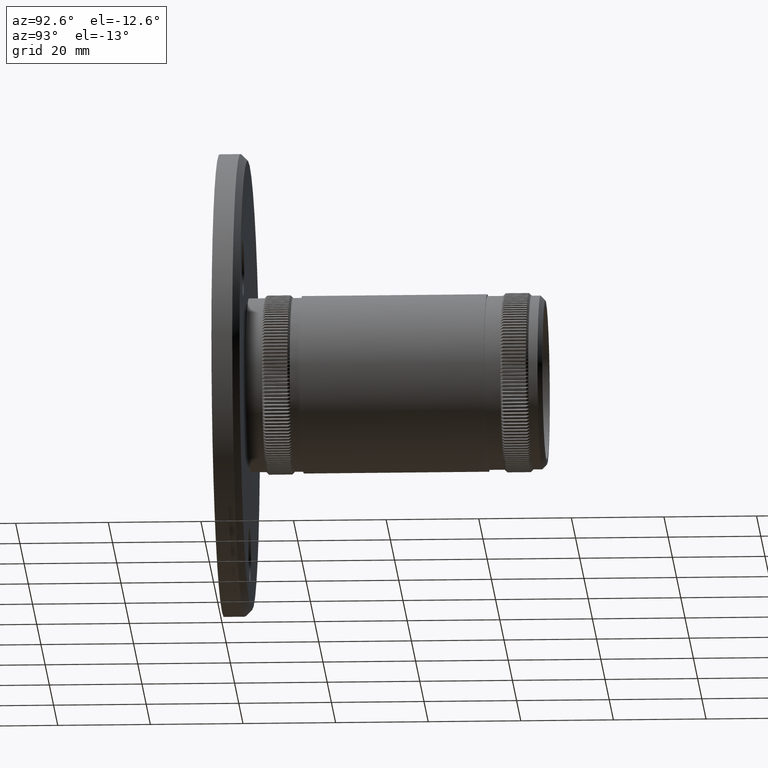
[diagram: clean part render]
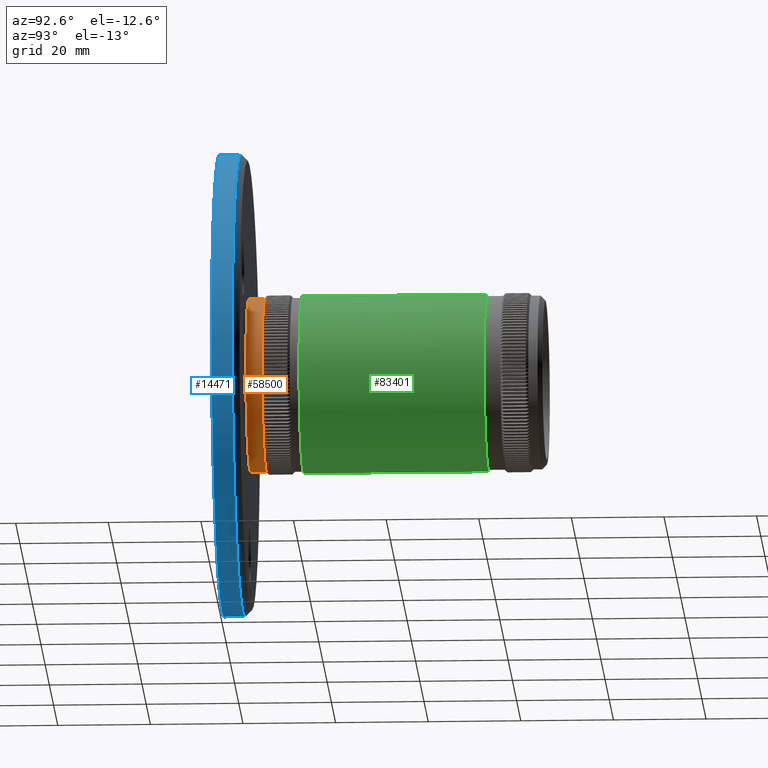
[diagram: same view with three faces highlighted in distinct colors, each labeled with its STEP entity id]
A machine part, auxiliary view with three faces highlighted in distinct colors.
Their STEP definitions:

[orange] entity #58500 — the highlighted cylindrical surface (bore or boss wall) has radius 18.75 mm, axis along (-0, -1, -0).
#50 = VERTEX_POINT ( 'NONE', #91160 ) ;
#145 = VERTEX_POINT ( 'NONE', #76372 ) ;
#372 = VERTEX_POINT ( 'NONE', #80315 ) ;
#375 = CIRCLE ( 'NONE', #40195, 18.75000000000000400 ) ;
#384 = VERTEX_POINT ( 'NONE', #2469 ) ;
#529 = VERTEX_POINT ( 'NONE', #90147 ) ;
#548 = DIRECTION ( 'NONE',  ( 0.0000000000000000000, 0.0000000000000000000, -1.000000000000000000 ) ) ;
#585 = EDGE_CURVE ( 'NONE', #87657, #28516, #39135, .T. ) ;
#650 = CARTESIAN_POINT ( 'NONE',  ( 0.0000000000000000000, 7.500000000000000000, 0.0000000000000000000 ) ) ;
#752 = CARTESIAN_POINT ( 'NONE',  ( -2.349998129330447900, 7.500000000000000000, -18.60215064964649300 ) ) ;
#850 = CIRCLE ( 'NONE', #42211, 18.75000000000000400 ) ;
#855 = AXIS2_PLACEMENT_3D ( 'NONE', #43372, #43671, #8302 ) ;
#867 = VERTEX_POINT ( 'NONE', #18863 ) ;
#1113 = DIRECTION ( 'NONE',  ( 0.0000000000000000000, 0.0000000000000000000, -1.000000000000000000 ) ) ;
#1149 = DIRECTION ( 'NONE',  ( 0.0000000000000000000, -1.000000000000000000, 0.0000000000000000000 ) ) ;
#1150 = AXIS2_PLACEMENT_3D ( 'NONE', #38804, #39384, #67154 ) ;
#1153 = DIRECTION ( 'NONE',  ( 0.0000000000000000000, 0.0000000000000000000, -1.000000000000000000 ) ) ;
#1194 = VERTEX_POINT ( 'NONE', #16346 ) ;
#1275 = CIRCLE ( 'NONE', #10160, 18.75000000000000400 ) ;
#1324 = ORIENTED_EDGE ( 'NONE', *, *, #3236, .T. ) ;
#1394 = VERTEX_POINT ( 'NONE', #25224 ) ;
#1502 = VERTEX_POINT ( 'NONE', #5572 ) ;
#1603 = ORIENTED_EDGE ( 'NONE', *, *, #27100, .T. ) ;
#1655 = VERTEX_POINT ( 'NONE', #36712 ) ;
#1709 = CIRCLE ( 'NONE', #23362, 18.75000000000000400 ) ;
#1809 = DIRECTION ( 'NONE',  ( 0.0000000000000000000, 0.0000000000000000000, -1.000000000000000000 ) ) ;
#1858 = DIRECTION ( 'NONE',  ( 0.0000000000000000000, -1.000000000000000000, 0.0000000000000000000 ) ) ;
#1971 = DIRECTION ( 'NONE',  ( 0.0000000000000000000, -1.000000000000000000, 0.0000000000000000000 ) ) ;
#2121 = CARTESIAN_POINT ( 'NONE',  ( 0.0000000000000000000, 7.500000000000000000, 0.0000000000000000000 ) ) ;
#2130 = CARTESIAN_POINT ( 'NONE',  ( 0.0000000000000000000, 7.500000000000000000, 0.0000000000000000000 ) ) ;
#2170 = ORIENTED_EDGE ( 'NONE', *, *, #24446, .T. ) ;
#2205 = DIRECTION ( 'NONE',  ( 0.0000000000000000000, 0.0000000000000000000, -1.000000000000000000 ) ) ;
#2233 = DIRECTION ( 'NONE',  ( 0.0000000000000000000, 0.0000000000000000000, -1.000000000000000000 ) ) ;
#2281 = VERTEX_POINT ( 'NONE', #82314 ) ;
#2419 = VERTEX_POINT ( 'NONE', #63452 ) ;
#2469 = CARTESIAN_POINT ( 'NONE',  ( -17.57403730297303200, 7.500000000000000000, 6.535725887283869700 ) ) ;
#2473 = VERTEX_POINT ( 'NONE', #28626 ) ;
#2533 = CARTESIAN_POINT ( 'NONE',  ( 11.64652088021823900, 7.500000000000000000, 14.69425232485956600 ) ) ;
#2611 = EDGE_CURVE ( 'NONE', #529, #21042, #57606, .T. ) ;
#2624 = EDGE_CURVE ( 'NONE', #82397, #4428, #44307, .T. ) ;
#2798 = CARTESIAN_POINT ( 'NONE',  ( 0.0000000000000000000, 7.500000000000000000, 0.0000000000000000000 ) ) ;
#2807 = CARTESIAN_POINT ( 'NONE',  ( 0.0000000000000000000, 7.500000000000000000, 0.0000000000000000000 ) ) ;
#3082 = VERTEX_POINT ( 'NONE', #60837 ) ;
#3113 = VERTEX_POINT ( 'NONE', #53157 ) ;
#3154 = ORIENTED_EDGE ( 'NONE', *, *, #28977, .T. ) ;
#3217 = DIRECTION ( 'NONE',  ( 0.0000000000000000000, -1.000000000000000000, 0.0000000000000000000 ) ) ;
#3236 = EDGE_CURVE ( 'NONE', #54269, #63079, #82917, .T. ) ;
#3289 = DIRECTION ( 'NONE',  ( 0.0000000000000000000, -1.000000000000000000, 0.0000000000000000000 ) ) ;
#3418 = AXIS2_PLACEMENT_3D ( 'NONE', #52530, #24175, #81803 ) ;
#3463 = EDGE_CURVE ( 'NONE', #83702, #55265, #43076, .T. ) ;
#3476 = DIRECTION ( 'NONE',  ( 0.0000000000000000000, -1.000000000000000000, 0.0000000000000000000 ) ) ;
#3536 = DIRECTION ( 'NONE',  ( 0.0000000000000000000, 0.0000000000000000000, -1.000000000000000000 ) ) ;
#3620 = VERTEX_POINT ( 'NONE', #53954 ) ;
#3647 = VERTEX_POINT ( 'NONE', #67540 ) ;
#3740 = VERTEX_POINT ( 'NONE', #68767 ) ;
#3753 = EDGE_CURVE ( 'NONE', #10332, #79621, #41948, .T. ) ;
#3790 = DIRECTION ( 'NONE',  ( 0.0000000000000000000, -1.000000000000000000, 0.0000000000000000000 ) ) ;
#3794 = CARTESIAN_POINT ( 'NONE',  ( 0.0000000000000000000, 7.500000000000000000, 0.0000000000000000000 ) ) ;
#3840 = DIRECTION ( 'NONE',  ( 0.0000000000000000000, -1.000000000000000000, 0.0000000000000000000 ) ) ;
#3867 = AXIS2_PLACEMENT_3D ( 'NONE', #15237, #16150, #65143 ) ;
#3957 = CARTESIAN_POINT ( 'NONE',  ( -17.83230968053406700, 7.500000000000000000, -5.794068644530467400 ) ) ;
#4056 = VERTEX_POINT ( 'NONE', #2533 ) ;
#4100 = AXIS2_PLACEMENT_3D ( 'NONE', #78780, #49813, #49193 ) ;
#4172 = DIRECTION ( 'NONE',  ( 0.0000000000000000000, 0.0000000000000000000, -1.000000000000000000 ) ) ;
#4428 = VERTEX_POINT ( 'NONE', #24419 ) ;
#4533 = DIRECTION ( 'NONE',  ( 0.0000000000000000000, 0.0000000000000000000, -1.000000000000000000 ) ) ;
#4598 = CARTESIAN_POINT ( 'NONE',  ( 0.0000000000000000000, 7.500000000000000000, 0.0000000000000000000 ) ) ;
#4690 = EDGE_CURVE ( 'NONE', #89395, #59707, #35386, .T. ) ;
#4699 = VERTEX_POINT ( 'NONE', #39418 ) ;
#4732 = EDGE_CURVE ( 'NONE', #20199, #68746, #28713, .T. ) ;
#4765 = AXIS2_PLACEMENT_3D ( 'NONE', #69369, #82929, #83849 ) ;
#4924 = EDGE_CURVE ( 'NONE', #45427, #43156, #60708, .T. ) ;
#4939 = DIRECTION ( 'NONE',  ( 0.0000000000000000000, -1.000000000000000000, 0.0000000000000000000 ) ) ;
#4964 = DIRECTION ( 'NONE',  ( 0.0000000000000000000, -1.000000000000000000, 0.0000000000000000000 ) ) ;
#5075 = ORIENTED_EDGE ( 'NONE', *, *, #13531, .T. ) ;
#5203 = CIRCLE ( 'NONE', #56294, 18.75000000000000400 ) ;
#5205 = ORIENTED_EDGE ( 'NONE', *, *, #32355, .T. ) ;
#5301 = VERTEX_POINT ( 'NONE', #30123 ) ;
#5353 = CARTESIAN_POINT ( 'NONE',  ( 0.0000000000000000000, 7.500000000000000000, 0.0000000000000000000 ) ) ;
#5455 = CARTESIAN_POINT ( 'NONE',  ( 0.0000000000000000000, 7.500000000000000000, 0.0000000000000000000 ) ) ;
#5475 = CARTESIAN_POINT ( 'NONE',  ( 0.0000000000000000000, 7.500000000000000000, 0.0000000000000000000 ) ) ;
#5525 = DIRECTION ( 'NONE',  ( 0.0000000000000000000, 0.0000000000000000000, -1.000000000000000000 ) ) ;
#5555 = ORIENTED_EDGE ( 'NONE', *, *, #4690, .T. ) ;
#5572 = CARTESIAN_POINT ( 'NONE',  ( -13.39636274311491000, 7.500000000000000000, -13.11868763462576500 ) ) ;
#5588 = CARTESIAN_POINT ( 'NONE',  ( 0.0000000000000000000, 7.500000000000000000, 0.0000000000000000000 ) ) ;
#5592 = CARTESIAN_POINT ( 'NONE',  ( 16.96550723373788800, 7.500000000000000000, -7.983361716845072600 ) ) ;
#5736 = EDGE_CURVE ( 'NONE', #43512, #25777, #21983, .T. ) ;
#5746 = DIRECTION ( 'NONE',  ( 0.0000000000000000000, -1.000000000000000000, 0.0000000000000000000 ) ) ;
#5761 = DIRECTION ( 'NONE',  ( 0.0000000000000000000, 0.0000000000000000000, -1.000000000000000000 ) ) ;
#5869 = ORIENTED_EDGE ( 'NONE', *, *, #5736, .T. ) ;
#5889 = VERTEX_POINT ( 'NONE', #61071 ) ;
#5908 = VERTEX_POINT ( 'NONE', #47175 ) ;
#6086 = CARTESIAN_POINT ( 'NONE',  ( -11.02097348048369000, 7.500000000000000000, -15.16906864453040200 ) ) ;
#6120 = CIRCLE ( 'NONE', #37907, 18.75000000000000400 ) ;
#6317 = ORIENTED_EDGE ( 'NONE', *, *, #50358, .T. ) ;
#6450 = CARTESIAN_POINT ( 'NONE',  ( 6.166249626348331100, 7.500000000000000000, 17.70705694195281800 ) ) ;
#6494 = DIRECTION ( 'NONE',  ( 0.0000000000000000000, 0.0000000000000000000, -1.000000000000000000 ) ) ;
#6526 = EDGE_CURVE ( 'NONE', #2281, #2419, #63733, .T. ) ;
#6619 = CARTESIAN_POINT ( 'NONE',  ( -3.898344202833122100, 7.500000000000000000, 18.34026751375883200 ) ) ;
#6873 = DIRECTION ( 'NONE',  ( 0.0000000000000000000, 0.0000000000000000000, -1.000000000000000000 ) ) ;
#6988 = AXIS2_PLACEMENT_3D ( 'NONE', #66550, #59167, #87250 ) ;
#6991 = CIRCLE ( 'NONE', #57446, 18.75000000000000400 ) ;
#7012 = ORIENTED_EDGE ( 'NONE', *, *, #13136, .T. ) ;
#7078 = AXIS2_PLACEMENT_3D ( 'NONE', #38772, #38175, #80985 ) ;
#7216 = CARTESIAN_POINT ( 'NONE',  ( -7.626312057671392500, 7.500000000000000000, 17.12897733079871200 ) ) ;
#7494 = DIRECTION ( 'NONE',  ( 0.0000000000000000000, 0.0000000000000000000, -1.000000000000000000 ) ) ;
#7528 = CIRCLE ( 'NONE', #25756, 18.75000000000000400 ) ;
#7530 = AXIS2_PLACEMENT_3D ( 'NONE', #86496, #8526, #30061 ) ;
#7711 = EDGE_LOOP ( 'NONE', ( #1324, #48780, #62637, #14411, #12893, #32050, #47840, #40284, #5205, #57003, #47219, #67642, #5869, #30375, #27305, #38569, #35648, #87987, #56195, #59652, #67387, #47446, #29183, #66728, #61748, #36165, #50791, #57749, #71436, #57280, #91367, #5555, #39650, #79812, #68475, #70770, #11276, #29642, #13889, #10030, #26292, #10363, #51629, #59594, #21921, #29788, #30530, #11204, #69796, #56917, #90321, #56167, #10309, #35306, #40395, #84661, #40462, #23973, #47432, #13796, #17320, #7012, #28738, #81068, #38965, #33327, #81694, #80051, #65542, #84394, #26529, #41460, #41080, #41721, #75206, #42173, #48437, #75562, #33682, #13568, #1603, #32404, #74484, #45386, #7810, #15685, #80143, #87519, #61971, #64366, #49964, #77185, #54217, #17425, #67241, #52279, #56288, #43332, #53121, #40339, #2170, #51727, #14507, #77400, #37533, #91396, #89643, #35799, #50713, #20181, #15243, #19722, #64755, #5075, #53249, #28782, #32982, #85384, #20278, #62742, #10412, #44455, #20409, #12864, #50556, #6317, #91415, #13263, #21188, #3154, #31083, #84574, #20411, #49531, #29455, #57028, #60207, #11111, #42336, #91097, #89884, #33499, #77131, #14949, #87089, #38157, #48101, #45951, #9942, #7951 ) ) ;
#7796 = VERTEX_POINT ( 'NONE', #15958 ) ;
#7810 = ORIENTED_EDGE ( 'NONE', *, *, #55479, .T. ) ;
#7823 = AXIS2_PLACEMENT_3D ( 'NONE', #67563, #82650, #32440 ) ;
#7843 = DIRECTION ( 'NONE',  ( 0.0000000000000000000, 0.0000000000000000000, -1.000000000000000000 ) ) ;
#7881 = AXIS2_PLACEMENT_3D ( 'NONE', #88565, #88258, #4172 ) ;
#7886 = AXIS2_PLACEMENT_3D ( 'NONE', #3794, #17558, #74610 ) ;
#7909 = EDGE_CURVE ( 'NONE', #83452, #50, #23859, .T. ) ;
#7946 = AXIS2_PLACEMENT_3D ( 'NONE', #61544, #4939, #19311 ) ;
#7951 = ORIENTED_EDGE ( 'NONE', *, *, #70605, .T. ) ;
#7991 = EDGE_CURVE ( 'NONE', #33091, #25410, #8407, .T. ) ;
#8175 = CARTESIAN_POINT ( 'NONE',  ( 0.0000000000000000000, 7.500000000000000000, 0.0000000000000000000 ) ) ;
#8197 = CIRCLE ( 'NONE', #22802, 18.75000000000000400 ) ;
#8253 = AXIS2_PLACEMENT_3D ( 'NONE', #65164, #86480, #15261 ) ;
#8302 = DIRECTION ( 'NONE',  ( 0.0000000000000000000, 0.0000000000000000000, -1.000000000000000000 ) ) ;
#8356 = CARTESIAN_POINT ( 'NONE',  ( 0.0000000000000000000, 7.500000000000000000, 0.0000000000000000000 ) ) ;
#8370 = AXIS2_PLACEMENT_3D ( 'NONE', #32695, #12367, #75537 ) ;
#8407 = CIRCLE ( 'NONE', #38220, 18.75000000000000400 ) ;
#8448 = DIRECTION ( 'NONE',  ( 0.0000000000000000000, -1.000000000000000000, 0.0000000000000000000 ) ) ;
#8526 = DIRECTION ( 'NONE',  ( 0.0000000000000000000, -1.000000000000000000, 0.0000000000000000000 ) ) ;
#8571 = DIRECTION ( 'NONE',  ( 0.0000000000000000000, -1.000000000000000000, 0.0000000000000000000 ) ) ;
#8572 = CARTESIAN_POINT ( 'NONE',  ( 0.0000000000000000000, 7.500000000000000000, 0.0000000000000000000 ) ) ;
#8721 = VERTEX_POINT ( 'NONE', #85127 ) ;
#8723 = VERTEX_POINT ( 'NONE', #35829 ) ;
#8887 = VERTEX_POINT ( 'NONE', #58577 ) ;
#8907 = EDGE_CURVE ( 'NONE', #59325, #51156, #18855, .T. ) ;
#8934 = DIRECTION ( 'NONE',  ( 0.0000000000000000000, 0.0000000000000000000, -1.000000000000000000 ) ) ;
#9207 = CARTESIAN_POINT ( 'NONE',  ( 0.0000000000000000000, 7.500000000000000000, 0.0000000000000000000 ) ) ;
#9280 = CARTESIAN_POINT ( 'NONE',  ( 7.626312057671154500, 7.500000000000000000, 17.12897733079881500 ) ) ;
#9485 = CIRCLE ( 'NONE', #23863, 18.75000000000000400 ) ;
#9542 = VERTEX_POINT ( 'NONE', #13746 ) ;
#9608 = DIRECTION ( 'NONE',  ( 0.0000000000000000000, 0.0000000000000000000, -1.000000000000000000 ) ) ;
#9679 = CARTESIAN_POINT ( 'NONE',  ( 13.93396547770108300, 7.500000000000000000, 12.54619886922866500 ) ) ;
#9776 = CARTESIAN_POINT ( 'NONE',  ( -18.54885624305606500, 7.500000000000000000, 2.739056785545036300 ) ) ;
#9942 = ORIENTED_EDGE ( 'NONE', *, *, #81029, .T. ) ;
#10030 = ORIENTED_EDGE ( 'NONE', *, *, #79862, .T. ) ;
#10031 = AXIS2_PLACEMENT_3D ( 'NONE', #32899, #60015, #60299 ) ;
#10132 = CIRCLE ( 'NONE', #67360, 18.75000000000000400 ) ;
#10160 = AXIS2_PLACEMENT_3D ( 'NONE', #2798, #80652, #81263 ) ;
#10177 = CARTESIAN_POINT ( 'NONE',  ( 18.41788595116293000, 7.500000000000000000, -3.513399648482282300 ) ) ;
#10197 = AXIS2_PLACEMENT_3D ( 'NONE', #82778, #19252, #75978 ) ;
#10224 = CARTESIAN_POINT ( 'NONE',  ( 0.0000000000000000000, 7.500000000000000000, 0.0000000000000000000 ) ) ;
#10309 = ORIENTED_EDGE ( 'NONE', *, *, #91340, .T. ) ;
#10327 = DIRECTION ( 'NONE',  ( 0.0000000000000000000, 0.0000000000000000000, -1.000000000000000000 ) ) ;
#10332 = VERTEX_POINT ( 'NONE', #81351 ) ;
#10363 = ORIENTED_EDGE ( 'NONE', *, *, #50392, .T. ) ;
#10412 = ORIENTED_EDGE ( 'NONE', *, *, #19882, .T. ) ;
#10506 = CIRCLE ( 'NONE', #84968, 18.75000000000000400 ) ;
#10585 = DIRECTION ( 'NONE',  ( 0.0000000000000000000, -1.000000000000000000, 0.0000000000000000000 ) ) ;
#10629 = CARTESIAN_POINT ( 'NONE',  ( -6.902335362837479100, 7.500000000000000000, -17.43330911040481000 ) ) ;
#10655 = CARTESIAN_POINT ( 'NONE',  ( 0.0000000000000000000, 7.500000000000000000, 0.0000000000000000000 ) ) ;
#10684 = DIRECTION ( 'NONE',  ( 0.0000000000000000000, -1.000000000000000000, 0.0000000000000000000 ) ) ;
#10994 = EDGE_CURVE ( 'NONE', #52150, #31920, #57508, .T. ) ;
#11008 = VERTEX_POINT ( 'NONE', #32881 ) ;
#11111 = ORIENTED_EDGE ( 'NONE', *, *, #71726, .T. ) ;
#11204 = ORIENTED_EDGE ( 'NONE', *, *, #35941, .T. ) ;
#11270 = AXIS2_PLACEMENT_3D ( 'NONE', #8356, #64413, #36685 ) ;
#11276 = ORIENTED_EDGE ( 'NONE', *, *, #84692, .T. ) ;
#11399 = CARTESIAN_POINT ( 'NONE',  ( -6.902335362837853000, 7.500000000000000000, 17.43330911040466100 ) ) ;
#11420 = DIRECTION ( 'NONE',  ( 0.0000000000000000000, -1.000000000000000000, 0.0000000000000000000 ) ) ;
#11494 = EDGE_LOOP ( 'NONE', ( #18406 ) ) ;
#11537 = CARTESIAN_POINT ( 'NONE',  ( -17.28493409228430300, 7.500000000000000000, -7.265917245977131100 ) ) ;
#11594 = VERTEX_POINT ( 'NONE', #19172 ) ;
#11607 = FACE_OUTER_BOUND ( 'NONE', #11494, .T. ) ;
#11630 = AXIS2_PLACEMENT_3D ( 'NONE', #2130, #73268, #37164 ) ;
#11795 = AXIS2_PLACEMENT_3D ( 'NONE', #49479, #84651, #84048 ) ;
#11904 = CIRCLE ( 'NONE', #49089, 18.75000000000000400 ) ;
#11980 = EDGE_CURVE ( 'NONE', #42761, #25441, #1275, .T. ) ;
#12035 = DIRECTION ( 'NONE',  ( 0.0000000000000000000, 0.0000000000000000000, -1.000000000000000000 ) ) ;
#12172 = VERTEX_POINT ( 'NONE', #74816 ) ;
#12263 = CIRCLE ( 'NONE', #35239, 18.75000000000000400 ) ;
#12269 = EDGE_CURVE ( 'NONE', #65878, #45625, #38599, .T. ) ;
#12367 = DIRECTION ( 'NONE',  ( 0.0000000000000000000, -1.000000000000000000, 0.0000000000000000000 ) ) ;
#12379 = DIRECTION ( 'NONE',  ( 0.0000000000000000000, 0.0000000000000000000, -1.000000000000000000 ) ) ;
#12552 = DIRECTION ( 'NONE',  ( 0.0000000000000000000, -1.000000000000000000, 0.0000000000000000000 ) ) ;
#12681 = CARTESIAN_POINT ( 'NONE',  ( -16.61631711058536400, 7.500000000000000000, 8.686800658497254800 ) ) ;
#12812 = CARTESIAN_POINT ( 'NONE',  ( 9.713006425746209900, 7.500000000000000000, -16.03807987800949100 ) ) ;
#12864 = ORIENTED_EDGE ( 'NONE', *, *, #39053, .T. ) ;
#12893 = ORIENTED_EDGE ( 'NONE', *, *, #10994, .T. ) ;
#12928 = CARTESIAN_POINT ( 'NONE',  ( 0.0000000000000000000, 7.500000000000000000, 0.0000000000000000000 ) ) ;
#12936 = CIRCLE ( 'NONE', #7881, 18.75000000000000400 ) ;
#12990 = VERTEX_POINT ( 'NONE', #71553 ) ;
#13063 = EDGE_CURVE ( 'NONE', #19123, #77616, #51669, .T. ) ;
#13129 = EDGE_CURVE ( 'NONE', #21042, #3113, #58308, .T. ) ;
#13136 = EDGE_CURVE ( 'NONE', #37062, #1194, #84774, .T. ) ;
#13138 = AXIS2_PLACEMENT_3D ( 'NONE', #90473, #76599, #27558 ) ;
#13152 = CARTESIAN_POINT ( 'NONE',  ( -12.25163632481430700, 7.500000000000000000, -14.19365729347058300 ) ) ;
#13156 = CARTESIAN_POINT ( 'NONE',  ( 0.0000000000000000000, 7.500000000000000000, 0.0000000000000000000 ) ) ;
#13236 = DIRECTION ( 'NONE',  ( 0.0000000000000000000, 0.0000000000000000000, -1.000000000000000000 ) ) ;
#13263 = ORIENTED_EDGE ( 'NONE', *, *, #90483, .T. ) ;
#13270 = EDGE_CURVE ( 'NONE', #78311, #74344, #67157, .T. ) ;
#13450 = VERTEX_POINT ( 'NONE', #62471 ) ;
#13489 = CARTESIAN_POINT ( 'NONE',  ( 0.0000000000000000000, 7.500000000000000000, 0.0000000000000000000 ) ) ;
#13531 = EDGE_CURVE ( 'NONE', #2473, #8721, #62612, .T. ) ;
#13568 = ORIENTED_EDGE ( 'NONE', *, *, #45626, .T. ) ;
#13573 = CARTESIAN_POINT ( 'NONE',  ( 0.0000000000000000000, 7.500000000000000000, 0.0000000000000000000 ) ) ;
#13746 = CARTESIAN_POINT ( 'NONE',  ( 18.64728553815512400, 7.500000000000000000, 1.959908686268571300 ) ) ;
#13796 = ORIENTED_EDGE ( 'NONE', *, *, #56454, .T. ) ;
#13889 = ORIENTED_EDGE ( 'NONE', *, *, #7909, .T. ) ;
#13943 = DIRECTION ( 'NONE',  ( 0.0000000000000000000, -1.000000000000000000, 0.0000000000000000000 ) ) ;
#13990 = DIRECTION ( 'NONE',  ( 0.0000000000000000000, -1.000000000000000000, 0.0000000000000000000 ) ) ;
#13999 = AXIS2_PLACEMENT_3D ( 'NONE', #88736, #34437, #5525 ) ;
#14018 = DIRECTION ( 'NONE',  ( 0.0000000000000000000, 0.0000000000000000000, -1.000000000000000000 ) ) ;
#14040 = CARTESIAN_POINT ( 'NONE',  ( 0.0000000000000000000, 7.500000000000000000, 0.0000000000000000000 ) ) ;
#14086 = CIRCLE ( 'NONE', #65466, 18.75000000000000400 ) ;
#14087 = DIRECTION ( 'NONE',  ( 0.0000000000000000000, -1.000000000000000000, 0.0000000000000000000 ) ) ;
#14259 = CARTESIAN_POINT ( 'NONE',  ( 11.02097348048389600, 7.500000000000000000, -15.16906864453025600 ) ) ;
#14370 = DIRECTION ( 'NONE',  ( 0.0000000000000000000, 0.0000000000000000000, -1.000000000000000000 ) ) ;
#14411 = ORIENTED_EDGE ( 'NONE', *, *, #37138, .T. ) ;
#14419 = DIRECTION ( 'NONE',  ( 0.0000000000000000000, -1.000000000000000000, 0.0000000000000000000 ) ) ;
#14507 = ORIENTED_EDGE ( 'NONE', *, *, #29929, .T. ) ;
#14605 = CARTESIAN_POINT ( 'NONE',  ( 0.0000000000000000000, 7.500000000000000000, 0.0000000000000000000 ) ) ;
#14809 = CARTESIAN_POINT ( 'NONE',  ( -18.25460442887171200, 7.500000000000000000, -4.281578814575000900 ) ) ;
#14848 = CARTESIAN_POINT ( 'NONE',  ( 0.0000000000000000000, 7.500000000000000000, 0.0000000000000000000 ) ) ;
#14928 = CARTESIAN_POINT ( 'NONE',  ( 18.54885624305602600, 7.500000000000000000, 2.739056785545286800 ) ) ;
#14949 = ORIENTED_EDGE ( 'NONE', *, *, #53020, .T. ) ;
#14965 = VERTEX_POINT ( 'NONE', #20648 ) ;
#15229 = CIRCLE ( 'NONE', #39956, 18.75000000000000400 ) ;
#15237 = CARTESIAN_POINT ( 'NONE',  ( 0.0000000000000000000, 7.500000000000000000, 0.0000000000000000000 ) ) ;
#15243 = ORIENTED_EDGE ( 'NONE', *, *, #59800, .T. ) ;
#15261 = DIRECTION ( 'NONE',  ( 0.0000000000000000000, 0.0000000000000000000, -1.000000000000000000 ) ) ;
#15262 = EDGE_CURVE ( 'NONE', #45625, #83668, #850, .T. ) ;
#15345 = DIRECTION ( 'NONE',  ( 0.0000000000000000000, -1.000000000000000000, 0.0000000000000000000 ) ) ;
#15502 = AXIS2_PLACEMENT_3D ( 'NONE', #67795, #74590, #67483 ) ;
#15583 = EDGE_CURVE ( 'NONE', #28516, #529, #32692, .T. ) ;
#15685 = ORIENTED_EDGE ( 'NONE', *, *, #87994, .T. ) ;
#15738 = DIRECTION ( 'NONE',  ( 0.0000000000000000000, 0.0000000000000000000, -1.000000000000000000 ) ) ;
#15815 = CARTESIAN_POINT ( 'NONE',  ( 17.28493409228440900, 7.500000000000000000, -7.265917245976889500 ) ) ;
#15929 = CARTESIAN_POINT ( 'NONE',  ( 0.0000000000000000000, 7.500000000000000000, 0.0000000000000000000 ) ) ;
#15958 = CARTESIAN_POINT ( 'NONE',  ( -13.93396547770099400, 7.500000000000000000, -12.54619886922876000 ) ) ;
#16150 = DIRECTION ( 'NONE',  ( 0.0000000000000000000, -1.000000000000000000, 0.0000000000000000000 ) ) ;
#16186 = CIRCLE ( 'NONE', #18218, 18.75000000000000400 ) ;
#16255 = EDGE_CURVE ( 'NONE', #27199, #26961, #72341, .T. ) ;
#16270 = CIRCLE ( 'NONE', #26423, 18.75000000000000400 ) ;
#16346 = CARTESIAN_POINT ( 'NONE',  ( 9.713006425746101500, 7.500000000000000000, 16.03807987800955800 ) ) ;
#16514 = DIRECTION ( 'NONE',  ( 0.0000000000000000000, 0.0000000000000000000, -1.000000000000000000 ) ) ;
#16646 = DIRECTION ( 'NONE',  ( 0.0000000000000000000, -1.000000000000000000, 0.0000000000000000000 ) ) ;
#16651 = DIRECTION ( 'NONE',  ( 0.0000000000000000000, -1.000000000000000000, 0.0000000000000000000 ) ) ;
#16754 = EDGE_CURVE ( 'NONE', #2419, #11008, #52412, .T. ) ;
#16947 = CARTESIAN_POINT ( 'NONE',  ( 0.0000000000000000000, 7.500000000000000000, 0.0000000000000000000 ) ) ;
#16958 = AXIS2_PLACEMENT_3D ( 'NONE', #24787, #10684, #38090 ) ;
#17015 = CIRCLE ( 'NONE', #27501, 18.75000000000000400 ) ;
#17134 = VERTEX_POINT ( 'NONE', #43390 ) ;
#17255 = CARTESIAN_POINT ( 'NONE',  ( 0.0000000000000000000, 7.500000000000000000, 0.0000000000000000000 ) ) ;
#17320 = ORIENTED_EDGE ( 'NONE', *, *, #43492, .T. ) ;
#17409 = CARTESIAN_POINT ( 'NONE',  ( 0.0000000000000000000, 7.500000000000000000, 0.0000000000000000000 ) ) ;
#17425 = ORIENTED_EDGE ( 'NONE', *, *, #16754, .T. ) ;
#17532 = AXIS2_PLACEMENT_3D ( 'NONE', #80965, #66789, #80662 ) ;
#17538 = CARTESIAN_POINT ( 'NONE',  ( 0.0000000000000000000, 7.500000000000000000, 0.0000000000000000000 ) ) ;
#17558 = DIRECTION ( 'NONE',  ( 0.0000000000000000000, -1.000000000000000000, 0.0000000000000000000 ) ) ;
#17607 = EDGE_CURVE ( 'NONE', #3620, #19123, #36860, .T. ) ;
#17608 = CARTESIAN_POINT ( 'NONE',  ( 0.0000000000000000000, 7.500000000000000000, 0.0000000000000000000 ) ) ;
#17685 = CIRCLE ( 'NONE', #90021, 18.75000000000000400 ) ;
#17731 = CARTESIAN_POINT ( 'NONE',  ( 0.0000000000000000000, 4.000000000000000000, 18.75000000000000400 ) ) ;
#17767 = DIRECTION ( 'NONE',  ( 0.0000000000000000000, 0.0000000000000000000, -1.000000000000000000 ) ) ;
#17857 = CARTESIAN_POINT ( 'NONE',  ( 0.0000000000000000000, 7.500000000000000000, 0.0000000000000000000 ) ) ;
#17887 = CARTESIAN_POINT ( 'NONE',  ( 0.0000000000000000000, 7.500000000000000000, 0.0000000000000000000 ) ) ;
#17922 = CIRCLE ( 'NONE', #29616, 18.75000000000000400 ) ;
#17965 = CARTESIAN_POINT ( 'NONE',  ( 4.662935384341038200, 7.500000000000000000, -18.16093427116183200 ) ) ;
#18154 = CARTESIAN_POINT ( 'NONE',  ( 17.83230968053415600, 7.500000000000000000, -5.794068644530216100 ) ) ;
#18198 = AXIS2_PLACEMENT_3D ( 'NONE', #52561, #59959, #30402 ) ;
#18218 = AXIS2_PLACEMENT_3D ( 'NONE', #2807, #36621, #43655 ) ;
#18224 = EDGE_CURVE ( 'NONE', #5889, #86906, #46829, .T. ) ;
#18297 = AXIS2_PLACEMENT_3D ( 'NONE', #81659, #66875, #53905 ) ;
#18352 = CARTESIAN_POINT ( 'NONE',  ( 0.0000000000000000000, 7.500000000000000000, 0.0000000000000000000 ) ) ;
#18406 = ORIENTED_EDGE ( 'NONE', *, *, #36857, .T. ) ;
#18609 = CIRCLE ( 'NONE', #60058, 18.75000000000000400 ) ;
#18668 = DIRECTION ( 'NONE',  ( 0.0000000000000000000, 0.0000000000000000000, -1.000000000000000000 ) ) ;
#18747 = CIRCLE ( 'NONE', #88321, 18.75000000000000400 ) ;
#18773 = DIRECTION ( 'NONE',  ( 0.0000000000000000000, -1.000000000000000000, 0.0000000000000000000 ) ) ;
#18855 = CIRCLE ( 'NONE', #89133, 18.75000000000000400 ) ;
#18863 = CARTESIAN_POINT ( 'NONE',  ( 10.37609154831272600, 7.500000000000000000, -15.61727326331436000 ) ) ;
#19046 = DIRECTION ( 'NONE',  ( 0.0000000000000000000, -1.000000000000000000, 0.0000000000000000000 ) ) ;
#19123 = VERTEX_POINT ( 'NONE', #89079 ) ;
#19172 = CARTESIAN_POINT ( 'NONE',  ( 2.349998129330578100, 7.500000000000000000, 18.60215064964647500 ) ) ;
#19230 = CIRCLE ( 'NONE', #13138, 18.75000000000000400 ) ;
#19246 = VERTEX_POINT ( 'NONE', #48912 ) ;
#19252 = DIRECTION ( 'NONE',  ( 0.0000000000000000000, -1.000000000000000000, 0.0000000000000000000 ) ) ;
#19311 = DIRECTION ( 'NONE',  ( 0.0000000000000000000, 0.0000000000000000000, -1.000000000000000000 ) ) ;
#19334 = DIRECTION ( 'NONE',  ( 0.0000000000000000000, 0.0000000000000000000, -1.000000000000000000 ) ) ;
#19336 = EDGE_CURVE ( 'NONE', #33587, #47766, #55531, .T. ) ;
#19465 = EDGE_CURVE ( 'NONE', #62054, #69146, #88644, .T. ) ;
#19488 = VERTEX_POINT ( 'NONE', #79412 ) ;
#19545 = DIRECTION ( 'NONE',  ( 0.0000000000000000000, 0.0000000000000000000, -1.000000000000000000 ) ) ;
#19581 = CARTESIAN_POINT ( 'NONE',  ( 6.902335362837728600, 7.500000000000000000, -17.43330911040471100 ) ) ;
#19586 = DIRECTION ( 'NONE',  ( 0.0000000000000000000, -1.000000000000000000, 0.0000000000000000000 ) ) ;
#19722 = ORIENTED_EDGE ( 'NONE', *, *, #77459, .T. ) ;
#19882 = EDGE_CURVE ( 'NONE', #52176, #38428, #54385, .T. ) ;
#19924 = VERTEX_POINT ( 'NONE', #22335 ) ;
#19997 = DIRECTION ( 'NONE',  ( 0.0000000000000000000, 0.0000000000000000000, -1.000000000000000000 ) ) ;
#19999 = EDGE_CURVE ( 'NONE', #58980, #33587, #30056, .T. ) ;
#20075 = DIRECTION ( 'NONE',  ( 0.0000000000000000000, -1.000000000000000000, 0.0000000000000000000 ) ) ;
#20154 = EDGE_CURVE ( 'NONE', #69146, #48665, #375, .T. ) ;
#20181 = ORIENTED_EDGE ( 'NONE', *, *, #13270, .T. ) ;
#20199 = VERTEX_POINT ( 'NONE', #17965 ) ;
#20278 = ORIENTED_EDGE ( 'NONE', *, *, #60860, .T. ) ;
#20307 = EDGE_CURVE ( 'NONE', #79172, #49651, #86338, .T. ) ;
#20409 = ORIENTED_EDGE ( 'NONE', *, *, #86877, .T. ) ;
#20411 = ORIENTED_EDGE ( 'NONE', *, *, #63656, .T. ) ;
#20463 = DIRECTION ( 'NONE',  ( 0.0000000000000000000, 0.0000000000000000000, -1.000000000000000000 ) ) ;
#20472 = CARTESIAN_POINT ( 'NONE',  ( 0.0000000000000000000, 7.500000000000000000, -18.75000000000000700 ) ) ;
#20512 = AXIS2_PLACEMENT_3D ( 'NONE', #76783, #83571, #49008 ) ;
#20538 = DIRECTION ( 'NONE',  ( 0.0000000000000000000, -1.000000000000000000, 0.0000000000000000000 ) ) ;
#20648 = CARTESIAN_POINT ( 'NONE',  ( -18.54885624305600800, 7.500000000000000000, -2.739056785545425300 ) ) ;
#20657 = VERTEX_POINT ( 'NONE', #33284 ) ;
#20693 = VERTEX_POINT ( 'NONE', #25854 ) ;
#20778 = EDGE_CURVE ( 'NONE', #384, #33091, #38819, .T. ) ;
#20866 = AXIS2_PLACEMENT_3D ( 'NONE', #60928, #82824, #25789 ) ;
#20934 = CARTESIAN_POINT ( 'NONE',  ( -16.23797632095811800, 7.500000000000000000, -9.375000000000190100 ) ) ;
#20957 = CIRCLE ( 'NONE', #88854, 18.75000000000000400 ) ;
#21031 = AXIS2_PLACEMENT_3D ( 'NONE', #85197, #64791, #28773 ) ;
#21042 = VERTEX_POINT ( 'NONE', #29503 ) ;
#21094 = DIRECTION ( 'NONE',  ( 0.0000000000000000000, -1.000000000000000000, 0.0000000000000000000 ) ) ;
#21188 = ORIENTED_EDGE ( 'NONE', *, *, #28156, .T. ) ;
#21233 = DIRECTION ( 'NONE',  ( 0.0000000000000000000, -1.000000000000000000, 0.0000000000000000000 ) ) ;
#21406 = VERTEX_POINT ( 'NONE', #6086 ) ;
#21416 = CIRCLE ( 'NONE', #34581, 18.75000000000000400 ) ;
#21463 = FACE_OUTER_BOUND ( 'NONE', #7711, .T. ) ;
#21513 = CARTESIAN_POINT ( 'NONE',  ( 0.0000000000000000000, 7.500000000000000000, 0.0000000000000000000 ) ) ;
#21566 = AXIS2_PLACEMENT_3D ( 'NONE', #74853, #19586, #32908 ) ;
#21693 = CARTESIAN_POINT ( 'NONE',  ( 0.0000000000000000000, 7.500000000000000000, 0.0000000000000000000 ) ) ;
#21821 = AXIS2_PLACEMENT_3D ( 'NONE', #22264, #71911, #51519 ) ;
#21847 = AXIS2_PLACEMENT_3D ( 'NONE', #47004, #12552, #18668 ) ;
#21921 = ORIENTED_EDGE ( 'NONE', *, *, #19465, .T. ) ;
#21973 = CIRCLE ( 'NONE', #31362, 18.75000000000000400 ) ;
#21979 = EDGE_CURVE ( 'NONE', #86906, #40082, #24418, .T. ) ;
#21983 = CIRCLE ( 'NONE', #79374, 18.75000000000000400 ) ;
#22211 = CIRCLE ( 'NONE', #7946, 18.75000000000000400 ) ;
#22248 = DIRECTION ( 'NONE',  ( 0.0000000000000000000, -1.000000000000000000, 0.0000000000000000000 ) ) ;
#22264 = CARTESIAN_POINT ( 'NONE',  ( 0.0000000000000000000, 7.500000000000000000, 0.0000000000000000000 ) ) ;
#22290 = CARTESIAN_POINT ( 'NONE',  ( 0.0000000000000000000, 7.500000000000000000, 0.0000000000000000000 ) ) ;
#22335 = CARTESIAN_POINT ( 'NONE',  ( 1.568959562480919200, 7.500000000000000000, -18.68424111092821200 ) ) ;
#22397 = CARTESIAN_POINT ( 'NONE',  ( 0.0000000000000000000, 7.500000000000000000, 0.0000000000000000000 ) ) ;
#22602 = CIRCLE ( 'NONE', #59913, 18.75000000000000400 ) ;
#22620 = CARTESIAN_POINT ( 'NONE',  ( 0.7851685074223637700, 7.500000000000000000, 18.73355306435360700 ) ) ;
#22672 = AXIS2_PLACEMENT_3D ( 'NONE', #22290, #8448, #71634 ) ;
#22733 = CIRCLE ( 'NONE', #30930, 18.75000000000000400 ) ;
#22737 = EDGE_CURVE ( 'NONE', #78408, #45427, #88315, .T. ) ;
#22802 = AXIS2_PLACEMENT_3D ( 'NONE', #57558, #15345, #64634 ) ;
#22818 = CARTESIAN_POINT ( 'NONE',  ( 0.0000000000000000000, 7.500000000000000000, 0.0000000000000000000 ) ) ;
#22838 = CARTESIAN_POINT ( 'NONE',  ( 0.0000000000000000000, 7.500000000000000000, 0.0000000000000000000 ) ) ;
#23031 = EDGE_CURVE ( 'NONE', #1502, #372, #55111, .T. ) ;
#23135 = CARTESIAN_POINT ( 'NONE',  ( 0.0000000000000000000, 7.500000000000000000, 0.0000000000000000000 ) ) ;
#23268 = CIRCLE ( 'NONE', #21821, 18.75000000000000400 ) ;
#23362 = AXIS2_PLACEMENT_3D ( 'NONE', #17857, #18773, #47102 ) ;
#23421 = CARTESIAN_POINT ( 'NONE',  ( -4.662935384340779700, 7.500000000000000000, -18.16093427116190300 ) ) ;
#23551 = EDGE_CURVE ( 'NONE', #28935, #54571, #80397, .T. ) ;
#23591 = CARTESIAN_POINT ( 'NONE',  ( 16.61631711058530300, 7.500000000000000000, -8.686800658497368500 ) ) ;
#23817 = CARTESIAN_POINT ( 'NONE',  ( 0.0000000000000000000, 7.500000000000000000, 0.0000000000000000000 ) ) ;
#23824 = CIRCLE ( 'NONE', #20866, 18.75000000000000400 ) ;
#23859 = CIRCLE ( 'NONE', #17532, 18.75000000000000400 ) ;
#23860 = DIRECTION ( 'NONE',  ( 0.0000000000000000000, 0.0000000000000000000, -1.000000000000000000 ) ) ;
#23863 = AXIS2_PLACEMENT_3D ( 'NONE', #73537, #38361, #87996 ) ;
#23941 = VERTEX_POINT ( 'NONE', #17731 ) ;
#23952 = EDGE_CURVE ( 'NONE', #9542, #31212, #89196, .T. ) ;
#23953 = CARTESIAN_POINT ( 'NONE',  ( 0.0000000000000000000, 7.500000000000000000, 0.0000000000000000000 ) ) ;
#23957 = CIRCLE ( 'NONE', #70318, 18.75000000000000400 ) ;
#23973 = ORIENTED_EDGE ( 'NONE', *, *, #70413, .T. ) ;
#24121 = CARTESIAN_POINT ( 'NONE',  ( 18.54885624305604700, 7.500000000000000000, -2.739056785545161500 ) ) ;
#24175 = DIRECTION ( 'NONE',  ( 0.0000000000000000000, -1.000000000000000000, 0.0000000000000000000 ) ) ;
#24176 = AXIS2_PLACEMENT_3D ( 'NONE', #18352, #67698, #52593 ) ;
#24353 = CARTESIAN_POINT ( 'NONE',  ( -17.57403730297289700, 7.500000000000000000, -6.535725887284237400 ) ) ;
#24369 = EDGE_CURVE ( 'NONE', #75463, #84147, #76973, .T. ) ;
#24418 = CIRCLE ( 'NONE', #53327, 18.75000000000000400 ) ;
#24419 = CARTESIAN_POINT ( 'NONE',  ( -9.032881389407297200, 7.500000000000000000, 16.43075025082237400 ) ) ;
#24440 = EDGE_CURVE ( 'NONE', #57216, #89395, #7528, .T. ) ;
#24446 = EDGE_CURVE ( 'NONE', #43156, #37748, #72587, .T. ) ;
#24498 = CIRCLE ( 'NONE', #38032, 18.75000000000000400 ) ;
#24647 = DIRECTION ( 'NONE',  ( 0.0000000000000000000, 0.0000000000000000000, -1.000000000000000000 ) ) ;
#24659 = DIRECTION ( 'NONE',  ( 0.0000000000000000000, 0.0000000000000000000, -1.000000000000000000 ) ) ;
#24708 = CARTESIAN_POINT ( 'NONE',  ( 9.032881389407069900, 7.500000000000000000, 16.43075025082250200 ) ) ;
#24787 = CARTESIAN_POINT ( 'NONE',  ( 0.0000000000000000000, 7.500000000000000000, 0.0000000000000000000 ) ) ;
#24830 = CARTESIAN_POINT ( 'NONE',  ( 18.25460442887177200, 7.500000000000000000, -4.281578814574743300 ) ) ;
#25137 = DIRECTION ( 'NONE',  ( 0.0000000000000000000, -1.000000000000000000, 0.0000000000000000000 ) ) ;
#25139 = VERTEX_POINT ( 'NONE', #9280 ) ;
#25224 = CARTESIAN_POINT ( 'NONE',  ( 7.626312057671272600, 7.500000000000000000, -17.12897733079876500 ) ) ;
#25300 = AXIS2_PLACEMENT_3D ( 'NONE', #76259, #5746, #82144 ) ;
#25333 = VERTEX_POINT ( 'NONE', #35726 ) ;
#25378 = VERTEX_POINT ( 'NONE', #36606 ) ;
#25410 = VERTEX_POINT ( 'NONE', #36914 ) ;
#25441 = VERTEX_POINT ( 'NONE', #85934 ) ;
#25498 = DIRECTION ( 'NONE',  ( 0.0000000000000000000, 0.0000000000000000000, -1.000000000000000000 ) ) ;
#25526 = CIRCLE ( 'NONE', #69649, 18.75000000000000400 ) ;
#25718 = CARTESIAN_POINT ( 'NONE',  ( 15.83114860316281500, 7.500000000000000000, -10.04675240585615400 ) ) ;
#25756 = AXIS2_PLACEMENT_3D ( 'NONE', #43211, #71940, #1113 ) ;
#25777 = VERTEX_POINT ( 'NONE', #12812 ) ;
#25789 = DIRECTION ( 'NONE',  ( 0.0000000000000000000, 0.0000000000000000000, -1.000000000000000000 ) ) ;
#25854 = CARTESIAN_POINT ( 'NONE',  ( 12.25163632481440200, 7.500000000000000000, 14.19365729347050500 ) ) ;
#25894 = EDGE_CURVE ( 'NONE', #31920, #20199, #55831, .T. ) ;
#26058 = CIRCLE ( 'NONE', #56589, 18.75000000000000400 ) ;
#26174 = EDGE_CURVE ( 'NONE', #25333, #37833, #48007, .T. ) ;
#26292 = ORIENTED_EDGE ( 'NONE', *, *, #23952, .T. ) ;
#26324 = EDGE_CURVE ( 'NONE', #89577, #67662, #78916, .T. ) ;
#26423 = AXIS2_PLACEMENT_3D ( 'NONE', #45707, #53438, #67626 ) ;
#26529 = ORIENTED_EDGE ( 'NONE', *, *, #60665, .T. ) ;
#26605 = CARTESIAN_POINT ( 'NONE',  ( -15.83114860316267200, 7.500000000000000000, -10.04675240585637600 ) ) ;
#26614 = CARTESIAN_POINT ( 'NONE',  ( 16.96550723373783100, 7.500000000000000000, 7.983361716845188900 ) ) ;
#26711 = EDGE_CURVE ( 'NONE', #25139, #145, #58107, .T. ) ;
#26811 = CARTESIAN_POINT ( 'NONE',  ( -10.37609154831283400, 7.500000000000000000, 15.61727326331428500 ) ) ;
#26919 = DIRECTION ( 'NONE',  ( 0.0000000000000000000, 0.0000000000000000000, -1.000000000000000000 ) ) ;
#26961 = VERTEX_POINT ( 'NONE', #47257 ) ;
#27100 = EDGE_CURVE ( 'NONE', #73326, #79172, #34602, .T. ) ;
#27199 = VERTEX_POINT ( 'NONE', #9679 ) ;
#27305 = ORIENTED_EDGE ( 'NONE', *, *, #63283, .T. ) ;
#27314 = VERTEX_POINT ( 'NONE', #64781 ) ;
#27353 = EDGE_CURVE ( 'NONE', #77616, #33495, #34500, .T. ) ;
#27501 = AXIS2_PLACEMENT_3D ( 'NONE', #5588, #55440, #13236 ) ;
#27558 = DIRECTION ( 'NONE',  ( 0.0000000000000000000, 0.0000000000000000000, -1.000000000000000000 ) ) ;
#27562 = CARTESIAN_POINT ( 'NONE',  ( 0.0000000000000000000, 7.500000000000000000, 0.0000000000000000000 ) ) ;
#27610 = CARTESIAN_POINT ( 'NONE',  ( 0.0000000000000000000, 7.500000000000000000, 0.0000000000000000000 ) ) ;
#27721 = EDGE_CURVE ( 'NONE', #27314, #87529, #55358, .T. ) ;
#27813 = VERTEX_POINT ( 'NONE', #88157 ) ;
#27958 = DIRECTION ( 'NONE',  ( 0.0000000000000000000, 0.0000000000000000000, -1.000000000000000000 ) ) ;
#28116 = DIRECTION ( 'NONE',  ( 0.0000000000000000000, -1.000000000000000000, 0.0000000000000000000 ) ) ;
#28156 = EDGE_CURVE ( 'NONE', #51355, #3740, #10132, .T. ) ;
#28274 = CARTESIAN_POINT ( 'NONE',  ( 0.0000000000000000000, 7.500000000000000000, 0.0000000000000000000 ) ) ;
#28281 = CARTESIAN_POINT ( 'NONE',  ( -7.626312057671044400, 7.500000000000000000, -17.12897733079886800 ) ) ;
#28346 = CARTESIAN_POINT ( 'NONE',  ( -5.419346192708975900, 7.500000000000000000, 17.94974057872622500 ) ) ;
#28516 = VERTEX_POINT ( 'NONE', #62362 ) ;
#28626 = CARTESIAN_POINT ( 'NONE',  ( -18.74588781515335300, 7.500000000000000000, -0.3926703728131316100 ) ) ;
#28713 = CIRCLE ( 'NONE', #7886, 18.75000000000000400 ) ;
#28738 = ORIENTED_EDGE ( 'NONE', *, *, #32213, .T. ) ;
#28773 = DIRECTION ( 'NONE',  ( 0.0000000000000000000, 0.0000000000000000000, -1.000000000000000000 ) ) ;
#28782 = ORIENTED_EDGE ( 'NONE', *, *, #55255, .T. ) ;
#28935 = VERTEX_POINT ( 'NONE', #15815 ) ;
#28956 = AXIS2_PLACEMENT_3D ( 'NONE', #5455, #47883, #5761 ) ;
#28977 = EDGE_CURVE ( 'NONE', #3740, #7796, #61793, .T. ) ;
#29047 = VERTEX_POINT ( 'NONE', #24708 ) ;
#29183 = ORIENTED_EDGE ( 'NONE', *, *, #80115, .T. ) ;
#29334 = VERTEX_POINT ( 'NONE', #11399 ) ;
#29455 = ORIENTED_EDGE ( 'NONE', *, *, #65382, .T. ) ;
#29503 = CARTESIAN_POINT ( 'NONE',  ( 13.93396547770116800, 7.500000000000000000, -12.54619886922857000 ) ) ;
#29616 = AXIS2_PLACEMENT_3D ( 'NONE', #23817, #30917, #31522 ) ;
#29642 = ORIENTED_EDGE ( 'NONE', *, *, #44584, .T. ) ;
#29688 = CARTESIAN_POINT ( 'NONE',  ( 15.39654767125697700, 7.500000000000000000, -10.70087939408306500 ) ) ;
#29788 = ORIENTED_EDGE ( 'NONE', *, *, #20154, .T. ) ;
#29900 = DIRECTION ( 'NONE',  ( 0.0000000000000000000, -1.000000000000000000, 0.0000000000000000000 ) ) ;
#29924 = DIRECTION ( 'NONE',  ( 0.0000000000000000000, -1.000000000000000000, 0.0000000000000000000 ) ) ;
#29929 = EDGE_CURVE ( 'NONE', #17134, #40709, #71664, .T. ) ;
#30056 = CIRCLE ( 'NONE', #78062, 18.75000000000000400 ) ;
#30061 = DIRECTION ( 'NONE',  ( 0.0000000000000000000, 0.0000000000000000000, -1.000000000000000000 ) ) ;
#30113 = AXIS2_PLACEMENT_3D ( 'NONE', #72206, #22248, #36139 ) ;
#30123 = CARTESIAN_POINT ( 'NONE',  ( 18.74588781515336000, 7.500000000000000000, -0.3926703728128782000 ) ) ;
#30228 = CIRCLE ( 'NONE', #48370, 18.75000000000000400 ) ;
#30251 = AXIS2_PLACEMENT_3D ( 'NONE', #8175, #35319, #42937 ) ;
#30318 = CARTESIAN_POINT ( 'NONE',  ( 17.57403730297298600, 7.500000000000000000, -6.535725887283988700 ) ) ;
#30375 = ORIENTED_EDGE ( 'NONE', *, *, #77243, .T. ) ;
#30382 = AXIS2_PLACEMENT_3D ( 'NONE', #36525, #43554, #1153 ) ;
#30401 = DIRECTION ( 'NONE',  ( 0.0000000000000000000, -1.000000000000000000, 0.0000000000000000000 ) ) ;
#30402 = DIRECTION ( 'NONE',  ( 0.0000000000000000000, 0.0000000000000000000, -1.000000000000000000 ) ) ;
#30530 = ORIENTED_EDGE ( 'NONE', *, *, #71725, .T. ) ;
#30837 = CARTESIAN_POINT ( 'NONE',  ( 15.39654767125690200, 7.500000000000000000, 10.70087939408317000 ) ) ;
#30917 = DIRECTION ( 'NONE',  ( 0.0000000000000000000, -1.000000000000000000, 0.0000000000000000000 ) ) ;
#30930 = AXIS2_PLACEMENT_3D ( 'NONE', #4598, #25137, #17767 ) ;
#31083 = ORIENTED_EDGE ( 'NONE', *, *, #51500, .T. ) ;
#31104 = VERTEX_POINT ( 'NONE', #56251 ) ;
#31129 = CIRCLE ( 'NONE', #4100, 18.75000000000000400 ) ;
#31212 = VERTEX_POINT ( 'NONE', #14928 ) ;
#31239 = EDGE_CURVE ( 'NONE', #29047, #3082, #37242, .T. ) ;
#31297 = DIRECTION ( 'NONE',  ( 0.0000000000000000000, 0.0000000000000000000, -1.000000000000000000 ) ) ;
#31362 = AXIS2_PLACEMENT_3D ( 'NONE', #75177, #4964, #19334 ) ;
#31380 = CARTESIAN_POINT ( 'NONE',  ( 0.0000000000000000000, 7.500000000000000000, 0.0000000000000000000 ) ) ;
#31439 = DIRECTION ( 'NONE',  ( 0.0000000000000000000, 0.0000000000000000000, -1.000000000000000000 ) ) ;
#31455 = CARTESIAN_POINT ( 'NONE',  ( 9.032881389407183500, 7.500000000000000000, -16.43075025082243800 ) ) ;
#31468 = AXIS2_PLACEMENT_3D ( 'NONE', #12928, #33880, #91184 ) ;
#31522 = DIRECTION ( 'NONE',  ( 0.0000000000000000000, 0.0000000000000000000, -1.000000000000000000 ) ) ;
#31553 = CIRCLE ( 'NONE', #89910, 18.75000000000000400 ) ;
#31616 = DIRECTION ( 'NONE',  ( 0.0000000000000000000, -1.000000000000000000, 0.0000000000000000000 ) ) ;
#31630 = EDGE_CURVE ( 'NONE', #40082, #28935, #12936, .T. ) ;
#31804 = DIRECTION ( 'NONE',  ( 0.0000000000000000000, -1.000000000000000000, 0.0000000000000000000 ) ) ;
#31807 = CARTESIAN_POINT ( 'NONE',  ( -18.71300115803011000, 7.500000000000000000, 1.177322241174440200 ) ) ;
#31912 = CARTESIAN_POINT ( 'NONE',  ( 0.0000000000000000000, 7.500000000000000000, 0.0000000000000000000 ) ) ;
#31920 = VERTEX_POINT ( 'NONE', #44943 ) ;
#32050 = ORIENTED_EDGE ( 'NONE', *, *, #25894, .T. ) ;
#32182 = VERTEX_POINT ( 'NONE', #56071 ) ;
#32213 = EDGE_CURVE ( 'NONE', #1194, #29047, #42607, .T. ) ;
#32256 = CARTESIAN_POINT ( 'NONE',  ( 0.0000000000000000000, 7.500000000000000000, 0.0000000000000000000 ) ) ;
#32355 = EDGE_CURVE ( 'NONE', #32182, #48452, #53610, .T. ) ;
#32404 = ORIENTED_EDGE ( 'NONE', *, *, #20307, .T. ) ;
#32440 = DIRECTION ( 'NONE',  ( 0.0000000000000000000, 0.0000000000000000000, -1.000000000000000000 ) ) ;
#32471 = CIRCLE ( 'NONE', #52598, 18.75000000000000400 ) ;
#32514 = EDGE_CURVE ( 'NONE', #87086, #71335, #22733, .T. ) ;
#32554 = AXIS2_PLACEMENT_3D ( 'NONE', #85624, #8571, #50437 ) ;
#32589 = CARTESIAN_POINT ( 'NONE',  ( 0.0000000000000000000, 7.500000000000000000, 0.0000000000000000000 ) ) ;
#32692 = CIRCLE ( 'NONE', #11630, 18.75000000000000400 ) ;
#32695 = CARTESIAN_POINT ( 'NONE',  ( 0.0000000000000000000, 7.500000000000000000, 0.0000000000000000000 ) ) ;
#32737 = DIRECTION ( 'NONE',  ( 0.0000000000000000000, 0.0000000000000000000, -1.000000000000000000 ) ) ;
#32858 = EDGE_CURVE ( 'NONE', #85163, #83702, #69004, .T. ) ;
#32881 = CARTESIAN_POINT ( 'NONE',  ( -13.39636274311517600, 7.500000000000000000, 13.11868763462548900 ) ) ;
#32889 = EDGE_CURVE ( 'NONE', #63079, #19924, #65617, .T. ) ;
#32899 = CARTESIAN_POINT ( 'NONE',  ( 0.0000000000000000000, 4.000000000000000000, 0.0000000000000000000 ) ) ;
#32908 = DIRECTION ( 'NONE',  ( 0.0000000000000000000, 0.0000000000000000000, -1.000000000000000000 ) ) ;
#32982 = ORIENTED_EDGE ( 'NONE', *, *, #59910, .T. ) ;
#33045 = DIRECTION ( 'NONE',  ( 0.0000000000000000000, -1.000000000000000000, 0.0000000000000000000 ) ) ;
#33075 = CARTESIAN_POINT ( 'NONE',  ( -17.83230968053418800, 7.500000000000000000, 5.794068644530093500 ) ) ;
#33091 = VERTEX_POINT ( 'NONE', #33075 ) ;
#33284 = CARTESIAN_POINT ( 'NONE',  ( -18.64728553815511000, 7.500000000000000000, -1.959908686268692700 ) ) ;
#33313 = AXIS2_PLACEMENT_3D ( 'NONE', #31380, #58502, #86880 ) ;
#33327 = ORIENTED_EDGE ( 'NONE', *, *, #26711, .T. ) ;
#33495 = VERTEX_POINT ( 'NONE', #30837 ) ;
#33499 = ORIENTED_EDGE ( 'NONE', *, *, #34838, .T. ) ;
#33587 = VERTEX_POINT ( 'NONE', #54723 ) ;
#33682 = ORIENTED_EDGE ( 'NONE', *, *, #36760, .T. ) ;
#33694 = DIRECTION ( 'NONE',  ( 0.0000000000000000000, -1.000000000000000000, 0.0000000000000000000 ) ) ;
#33858 = EDGE_CURVE ( 'NONE', #1394, #87100, #21416, .T. ) ;
#33880 = DIRECTION ( 'NONE',  ( 0.0000000000000000000, -1.000000000000000000, 0.0000000000000000000 ) ) ;
#34216 = CARTESIAN_POINT ( 'NONE',  ( -5.419346192708601100, 7.500000000000000000, -17.94974057872634200 ) ) ;
#34274 = CARTESIAN_POINT ( 'NONE',  ( 0.0000000000000000000, 7.500000000000000000, 0.0000000000000000000 ) ) ;
#34437 = DIRECTION ( 'NONE',  ( 0.0000000000000000000, -1.000000000000000000, 0.0000000000000000000 ) ) ;
#34500 = CIRCLE ( 'NONE', #70896, 18.75000000000000400 ) ;
#34506 = EDGE_CURVE ( 'NONE', #20693, #4056, #1709, .T. ) ;
#34581 = AXIS2_PLACEMENT_3D ( 'NONE', #71382, #50677, #20463 ) ;
#34590 = CARTESIAN_POINT ( 'NONE',  ( -18.41788595116295500, 7.500000000000000000, 3.513399648482157500 ) ) ;
#34602 = CIRCLE ( 'NONE', #49510, 18.75000000000000400 ) ;
#34667 = EDGE_CURVE ( 'NONE', #80236, #12990, #17015, .T. ) ;
#34683 = AXIS2_PLACEMENT_3D ( 'NONE', #13489, #14087, #41786 ) ;
#34717 = DIRECTION ( 'NONE',  ( 0.0000000000000000000, -1.000000000000000000, 0.0000000000000000000 ) ) ;
#34760 = CARTESIAN_POINT ( 'NONE',  ( 0.0000000000000000000, 7.500000000000000000, 0.0000000000000000000 ) ) ;
#34838 = EDGE_CURVE ( 'NONE', #51156, #12172, #8197, .T. ) ;
#34871 = AXIS2_PLACEMENT_3D ( 'NONE', #52982, #73394, #38217 ) ;
#34956 = CIRCLE ( 'NONE', #48556, 18.75000000000000400 ) ;
#34993 = DIRECTION ( 'NONE',  ( 0.0000000000000000000, -1.000000000000000000, 0.0000000000000000000 ) ) ;
#35050 = CARTESIAN_POINT ( 'NONE',  ( -8.336909609717528400, 7.500000000000000000, 16.79459550448892500 ) ) ;
#35053 = CARTESIAN_POINT ( 'NONE',  ( -18.64728553815515300, 7.500000000000000000, 1.959908686268318800 ) ) ;
#35239 = AXIS2_PLACEMENT_3D ( 'NONE', #43525, #77512, #56846 ) ;
#35306 = ORIENTED_EDGE ( 'NONE', *, *, #32514, .T. ) ;
#35319 = DIRECTION ( 'NONE',  ( 0.0000000000000000000, -1.000000000000000000, 0.0000000000000000000 ) ) ;
#35353 = DIRECTION ( 'NONE',  ( 0.0000000000000000000, -1.000000000000000000, 0.0000000000000000000 ) ) ;
#35386 = CIRCLE ( 'NONE', #67523, 18.75000000000000400 ) ;
#35574 = EDGE_CURVE ( 'NONE', #62109, #75478, #76322, .T. ) ;
#35648 = ORIENTED_EDGE ( 'NONE', *, *, #85972, .T. ) ;
#35657 = DIRECTION ( 'NONE',  ( 0.0000000000000000000, -1.000000000000000000, 0.0000000000000000000 ) ) ;
#35726 = CARTESIAN_POINT ( 'NONE',  ( -13.93396547770125500, 7.500000000000000000, 12.54619886922847600 ) ) ;
#35799 = ORIENTED_EDGE ( 'NONE', *, *, #51786, .T. ) ;
#35829 = CARTESIAN_POINT ( 'NONE',  ( 3.126914000926793900, 7.500000000000000000, 18.48742569507199500 ) ) ;
#35921 = DIRECTION ( 'NONE',  ( 0.0000000000000000000, -1.000000000000000000, 0.0000000000000000000 ) ) ;
#35941 = EDGE_CURVE ( 'NONE', #13450, #57874, #18609, .T. ) ;
#35963 = AXIS2_PLACEMENT_3D ( 'NONE', #23135, #37624, #15738 ) ;
#36003 = DIRECTION ( 'NONE',  ( 0.0000000000000000000, 0.0000000000000000000, -1.000000000000000000 ) ) ;
#36139 = DIRECTION ( 'NONE',  ( 0.0000000000000000000, 0.0000000000000000000, -1.000000000000000000 ) ) ;
#36165 = ORIENTED_EDGE ( 'NONE', *, *, #18224, .T. ) ;
#36200 = DIRECTION ( 'NONE',  ( 0.0000000000000000000, -1.000000000000000000, 0.0000000000000000000 ) ) ;
#36525 = CARTESIAN_POINT ( 'NONE',  ( 0.0000000000000000000, 7.500000000000000000, 0.0000000000000000000 ) ) ;
#36605 = EDGE_CURVE ( 'NONE', #57042, #78408, #58248, .T. ) ;
#36606 = CARTESIAN_POINT ( 'NONE',  ( -6.166249626348571800, 7.500000000000000000, 17.70705694195273200 ) ) ;
#36621 = DIRECTION ( 'NONE',  ( 0.0000000000000000000, -1.000000000000000000, 0.0000000000000000000 ) ) ;
#36685 = DIRECTION ( 'NONE',  ( 0.0000000000000000000, 0.0000000000000000000, -1.000000000000000000 ) ) ;
#36712 = CARTESIAN_POINT ( 'NONE',  ( 11.02097348048378900, 7.500000000000000000, 15.16906864453033100 ) ) ;
#36760 = EDGE_CURVE ( 'NONE', #55265, #46197, #46012, .T. ) ;
#36765 = CARTESIAN_POINT ( 'NONE',  ( 0.0000000000000000000, 7.500000000000000000, 0.0000000000000000000 ) ) ;
#36857 = EDGE_CURVE ( 'NONE', #23941, #23941, #89155, .T. ) ;
#36860 = CIRCLE ( 'NONE', #11795, 18.75000000000000400 ) ;
#36914 = CARTESIAN_POINT ( 'NONE',  ( -18.05929812745614500, 7.500000000000000000, 5.042246636536059000 ) ) ;
#37005 = CARTESIAN_POINT ( 'NONE',  ( 0.0000000000000000000, 7.500000000000000000, 0.0000000000000000000 ) ) ;
#37014 = DIRECTION ( 'NONE',  ( 0.0000000000000000000, 0.0000000000000000000, -1.000000000000000000 ) ) ;
#37023 = DIRECTION ( 'NONE',  ( 0.0000000000000000000, 0.0000000000000000000, -1.000000000000000000 ) ) ;
#37062 = VERTEX_POINT ( 'NONE', #57177 ) ;
#37129 = CARTESIAN_POINT ( 'NONE',  ( 0.0000000000000000000, 7.500000000000000000, 0.0000000000000000000 ) ) ;
#37138 = EDGE_CURVE ( 'NONE', #58958, #52150, #53753, .T. ) ;
#37164 = DIRECTION ( 'NONE',  ( 0.0000000000000000000, 0.0000000000000000000, -1.000000000000000000 ) ) ;
#37242 = CIRCLE ( 'NONE', #30251, 18.75000000000000400 ) ;
#37316 = CARTESIAN_POINT ( 'NONE',  ( 2.349998129330711700, 7.500000000000000000, -18.60215064964646800 ) ) ;
#37326 = DIRECTION ( 'NONE',  ( 0.0000000000000000000, 0.0000000000000000000, -1.000000000000000000 ) ) ;
#37362 = AXIS2_PLACEMENT_3D ( 'NONE', #55601, #76878, #70729 ) ;
#37464 = CIRCLE ( 'NONE', #34871, 18.75000000000000400 ) ;
#37533 = ORIENTED_EDGE ( 'NONE', *, *, #20778, .T. ) ;
#37624 = DIRECTION ( 'NONE',  ( 0.0000000000000000000, -1.000000000000000000, 0.0000000000000000000 ) ) ;
#37637 = CARTESIAN_POINT ( 'NONE',  ( 0.0000000000000000000, 7.500000000000000000, 0.0000000000000000000 ) ) ;
#37748 = VERTEX_POINT ( 'NONE', #12681 ) ;
#37833 = VERTEX_POINT ( 'NONE', #48980 ) ;
#37907 = AXIS2_PLACEMENT_3D ( 'NONE', #37637, #80753, #37326 ) ;
#38007 = CARTESIAN_POINT ( 'NONE',  ( 0.0000000000000000000, 7.500000000000000000, 0.0000000000000000000 ) ) ;
#38032 = AXIS2_PLACEMENT_3D ( 'NONE', #70022, #49637, #7494 ) ;
#38090 = DIRECTION ( 'NONE',  ( 0.0000000000000000000, 0.0000000000000000000, -1.000000000000000000 ) ) ;
#38157 = ORIENTED_EDGE ( 'NONE', *, *, #19999, .T. ) ;
#38175 = DIRECTION ( 'NONE',  ( 0.0000000000000000000, -1.000000000000000000, 0.0000000000000000000 ) ) ;
#38216 = AXIS2_PLACEMENT_3D ( 'NONE', #34274, #40703, #54319 ) ;
#38217 = DIRECTION ( 'NONE',  ( 0.0000000000000000000, 0.0000000000000000000, -1.000000000000000000 ) ) ;
#38220 = AXIS2_PLACEMENT_3D ( 'NONE', #80356, #87474, #59409 ) ;
#38361 = DIRECTION ( 'NONE',  ( 0.0000000000000000000, -1.000000000000000000, 0.0000000000000000000 ) ) ;
#38428 = VERTEX_POINT ( 'NONE', #24353 ) ;
#38460 = CARTESIAN_POINT ( 'NONE',  ( 0.0000000000000000000, 7.500000000000000000, 0.0000000000000000000 ) ) ;
#38569 = ORIENTED_EDGE ( 'NONE', *, *, #34667, .T. ) ;
#38574 = CARTESIAN_POINT ( 'NONE',  ( -8.336909609717183800, 7.500000000000000000, -16.79459550448909500 ) ) ;
#38599 = CIRCLE ( 'NONE', #52630, 18.75000000000000400 ) ;
#38712 = AXIS2_PLACEMENT_3D ( 'NONE', #36765, #10585, #3536 ) ;
#38772 = CARTESIAN_POINT ( 'NONE',  ( 0.0000000000000000000, 7.500000000000000000, 0.0000000000000000000 ) ) ;
#38804 = CARTESIAN_POINT ( 'NONE',  ( 0.0000000000000000000, 7.500000000000000000, 0.0000000000000000000 ) ) ;
#38819 = CIRCLE ( 'NONE', #31468, 18.75000000000000400 ) ;
#38906 = CIRCLE ( 'NONE', #3418, 18.75000000000000400 ) ;
#38965 = ORIENTED_EDGE ( 'NONE', *, *, #68271, .T. ) ;
#39053 = EDGE_CURVE ( 'NONE', #31104, #89577, #74479, .T. ) ;
#39135 = CIRCLE ( 'NONE', #37362, 18.75000000000000400 ) ;
#39162 = EDGE_CURVE ( 'NONE', #40709, #384, #19230, .T. ) ;
#39384 = DIRECTION ( 'NONE',  ( 0.0000000000000000000, -1.000000000000000000, 0.0000000000000000000 ) ) ;
#39418 = CARTESIAN_POINT ( 'NONE',  ( -11.64652088021844600, 7.500000000000000000, 14.69425232485940200 ) ) ;
#39603 = AXIS2_PLACEMENT_3D ( 'NONE', #40791, #62063, #26919 ) ;
#39650 = ORIENTED_EDGE ( 'NONE', *, *, #86495, .T. ) ;
#39956 = AXIS2_PLACEMENT_3D ( 'NONE', #56931, #85296, #55719 ) ;
#39983 = CARTESIAN_POINT ( 'NONE',  ( -2.349998129330837800, 7.500000000000000000, 18.60215064964644700 ) ) ;
#40082 = VERTEX_POINT ( 'NONE', #5592 ) ;
#40094 = CARTESIAN_POINT ( 'NONE',  ( 14.93493596295370700, 7.500000000000000000, -11.33623340366950100 ) ) ;
#40195 = AXIS2_PLACEMENT_3D ( 'NONE', #10655, #46307, #60189 ) ;
#40266 = CARTESIAN_POINT ( 'NONE',  ( 0.0000000000000000000, 7.500000000000000000, 0.0000000000000000000 ) ) ;
#40284 = ORIENTED_EDGE ( 'NONE', *, *, #79379, .T. ) ;
#40339 = ORIENTED_EDGE ( 'NONE', *, *, #4924, .T. ) ;
#40395 = ORIENTED_EDGE ( 'NONE', *, *, #83734, .T. ) ;
#40462 = ORIENTED_EDGE ( 'NONE', *, *, #62135, .T. ) ;
#40472 = AXIS2_PLACEMENT_3D ( 'NONE', #14848, #13943, #63227 ) ;
#40489 = VERTEX_POINT ( 'NONE', #81267 ) ;
#40507 = DIRECTION ( 'NONE',  ( 0.0000000000000000000, 0.0000000000000000000, -1.000000000000000000 ) ) ;
#40703 = DIRECTION ( 'NONE',  ( 0.0000000000000000000, -1.000000000000000000, 0.0000000000000000000 ) ) ;
#40707 = AXIS2_PLACEMENT_3D ( 'NONE', #22818, #16651, #9608 ) ;
#40709 = VERTEX_POINT ( 'NONE', #83705 ) ;
#40791 = CARTESIAN_POINT ( 'NONE',  ( 0.0000000000000000000, 7.500000000000000000, 0.0000000000000000000 ) ) ;
#41080 = ORIENTED_EDGE ( 'NONE', *, *, #55024, .T. ) ;
#41184 = CARTESIAN_POINT ( 'NONE',  ( -1.568959562481048400, 7.500000000000000000, 18.68424111092820500 ) ) ;
#41261 = DIRECTION ( 'NONE',  ( 0.0000000000000000000, 0.0000000000000000000, -1.000000000000000000 ) ) ;
#41291 = CARTESIAN_POINT ( 'NONE',  ( -10.37609154831251200, 7.500000000000000000, -15.61727326331449800 ) ) ;
#41460 = ORIENTED_EDGE ( 'NONE', *, *, #73042, .T. ) ;
#41575 = CARTESIAN_POINT ( 'NONE',  ( 0.0000000000000000000, 7.500000000000000000, 0.0000000000000000000 ) ) ;
#41721 = ORIENTED_EDGE ( 'NONE', *, *, #12269, .T. ) ;
#41738 = CIRCLE ( 'NONE', #6988, 18.75000000000000400 ) ;
#41773 = CARTESIAN_POINT ( 'NONE',  ( 17.57403730297294300, 7.500000000000000000, 6.535725887284111300 ) ) ;
#41780 = DIRECTION ( 'NONE',  ( 0.0000000000000000000, -1.000000000000000000, 0.0000000000000000000 ) ) ;
#41786 = DIRECTION ( 'NONE',  ( 0.0000000000000000000, 0.0000000000000000000, -1.000000000000000000 ) ) ;
#41838 = AXIS2_PLACEMENT_3D ( 'NONE', #50346, #35921, #70755 ) ;
#41864 = DIRECTION ( 'NONE',  ( 0.0000000000000000000, -1.000000000000000000, 0.0000000000000000000 ) ) ;
#41948 = CIRCLE ( 'NONE', #70598, 18.75000000000000400 ) ;
#42062 = DIRECTION ( 'NONE',  ( 0.0000000000000000000, 0.0000000000000000000, -1.000000000000000000 ) ) ;
#42165 = CARTESIAN_POINT ( 'NONE',  ( 0.0000000000000000000, 7.500000000000000000, 0.0000000000000000000 ) ) ;
#42173 = ORIENTED_EDGE ( 'NONE', *, *, #63162, .T. ) ;
#42200 = EDGE_CURVE ( 'NONE', #40489, #62054, #57383, .T. ) ;
#42211 = AXIS2_PLACEMENT_3D ( 'NONE', #40266, #89650, #25498 ) ;
#42213 = AXIS2_PLACEMENT_3D ( 'NONE', #45368, #3289, #10327 ) ;
#42218 = DIRECTION ( 'NONE',  ( 0.0000000000000000000, -1.000000000000000000, 0.0000000000000000000 ) ) ;
#42230 = AXIS2_PLACEMENT_3D ( 'NONE', #15929, #44840, #44541 ) ;
#42336 = ORIENTED_EDGE ( 'NONE', *, *, #3753, .T. ) ;
#42428 = CIRCLE ( 'NONE', #61624, 18.75000000000000400 ) ;
#42455 = AXIS2_PLACEMENT_3D ( 'NONE', #87364, #57113, #73215 ) ;
#42607 = CIRCLE ( 'NONE', #70505, 18.75000000000000400 ) ;
#42761 = VERTEX_POINT ( 'NONE', #58323 ) ;
#42937 = DIRECTION ( 'NONE',  ( 0.0000000000000000000, 0.0000000000000000000, -1.000000000000000000 ) ) ;
#43063 = DIRECTION ( 'NONE',  ( 0.0000000000000000000, 0.0000000000000000000, -1.000000000000000000 ) ) ;
#43066 = EDGE_CURVE ( 'NONE', #25378, #29334, #52981, .T. ) ;
#43076 = CIRCLE ( 'NONE', #38712, 18.75000000000000400 ) ;
#43156 = VERTEX_POINT ( 'NONE', #85079 ) ;
#43211 = CARTESIAN_POINT ( 'NONE',  ( 0.0000000000000000000, 7.500000000000000000, 0.0000000000000000000 ) ) ;
#43223 = EDGE_CURVE ( 'NONE', #12172, #71731, #56364, .T. ) ;
#43225 = DIRECTION ( 'NONE',  ( 0.0000000000000000000, 0.0000000000000000000, -1.000000000000000000 ) ) ;
#43263 = DIRECTION ( 'NONE',  ( 0.0000000000000000000, -1.000000000000000000, 0.0000000000000000000 ) ) ;
#43332 = ORIENTED_EDGE ( 'NONE', *, *, #36605, .T. ) ;
#43357 = CARTESIAN_POINT ( 'NONE',  ( 0.0000000000000000000, 7.500000000000000000, 0.0000000000000000000 ) ) ;
#43372 = CARTESIAN_POINT ( 'NONE',  ( 0.0000000000000000000, 7.500000000000000000, 0.0000000000000000000 ) ) ;
#43390 = CARTESIAN_POINT ( 'NONE',  ( -16.96550723373794500, 7.500000000000000000, 7.983361716844954400 ) ) ;
#43492 = EDGE_CURVE ( 'NONE', #1655, #37062, #48537, .T. ) ;
#43512 = VERTEX_POINT ( 'NONE', #31455 ) ;
#43525 = CARTESIAN_POINT ( 'NONE',  ( 0.0000000000000000000, 7.500000000000000000, 0.0000000000000000000 ) ) ;
#43539 = DIRECTION ( 'NONE',  ( 0.0000000000000000000, 0.0000000000000000000, -1.000000000000000000 ) ) ;
#43554 = DIRECTION ( 'NONE',  ( 0.0000000000000000000, -1.000000000000000000, 0.0000000000000000000 ) ) ;
#43647 = AXIS2_PLACEMENT_3D ( 'NONE', #73759, #3840, #60434 ) ;
#43655 = DIRECTION ( 'NONE',  ( 0.0000000000000000000, 0.0000000000000000000, -1.000000000000000000 ) ) ;
#43671 = DIRECTION ( 'NONE',  ( 0.0000000000000000000, -1.000000000000000000, 0.0000000000000000000 ) ) ;
#43692 = CARTESIAN_POINT ( 'NONE',  ( -4.662935384341161600, 7.500000000000000000, 18.16093427116180000 ) ) ;
#43910 = DIRECTION ( 'NONE',  ( 0.0000000000000000000, 0.0000000000000000000, -1.000000000000000000 ) ) ;
#43996 = CIRCLE ( 'NONE', #25300, 18.75000000000000400 ) ;
#44098 = EDGE_CURVE ( 'NONE', #49651, #25378, #72540, .T. ) ;
#44107 = EDGE_CURVE ( 'NONE', #3647, #52176, #54726, .T. ) ;
#44117 = AXIS2_PLACEMENT_3D ( 'NONE', #17255, #66884, #24647 ) ;
#44252 = DIRECTION ( 'NONE',  ( 0.0000000000000000000, 0.0000000000000000000, -1.000000000000000000 ) ) ;
#44307 = CIRCLE ( 'NONE', #33313, 18.75000000000000400 ) ;
#44308 = DIRECTION ( 'NONE',  ( 0.0000000000000000000, -1.000000000000000000, 0.0000000000000000000 ) ) ;
#44357 = CARTESIAN_POINT ( 'NONE',  ( -9.713006425746325300, 7.500000000000000000, 16.03807987800942300 ) ) ;
#44395 = EDGE_CURVE ( 'NONE', #64019, #50478, #16270, .T. ) ;
#44455 = ORIENTED_EDGE ( 'NONE', *, *, #58924, .T. ) ;
#44541 = DIRECTION ( 'NONE',  ( 0.0000000000000000000, 0.0000000000000000000, -1.000000000000000000 ) ) ;
#44584 = EDGE_CURVE ( 'NONE', #5301, #83452, #26058, .T. ) ;
#44622 = AXIS2_PLACEMENT_3D ( 'NONE', #65524, #64906, #85918 ) ;
#44840 = DIRECTION ( 'NONE',  ( 0.0000000000000000000, -1.000000000000000000, 0.0000000000000000000 ) ) ;
#44943 = CARTESIAN_POINT ( 'NONE',  ( 3.898344202832996900, 7.500000000000000000, -18.34026751375886000 ) ) ;
#45184 = DIRECTION ( 'NONE',  ( 0.0000000000000000000, -1.000000000000000000, 0.0000000000000000000 ) ) ;
#45205 = EDGE_CURVE ( 'NONE', #87100, #43512, #14086, .T. ) ;
#45234 = CARTESIAN_POINT ( 'NONE',  ( 18.74588781515336000, 7.500000000000000000, 0.3926703728130091500 ) ) ;
#45238 = CARTESIAN_POINT ( 'NONE',  ( 12.25163632481450400, 7.500000000000000000, -14.19365729347041900 ) ) ;
#45263 = DIRECTION ( 'NONE',  ( 0.0000000000000000000, 0.0000000000000000000, -1.000000000000000000 ) ) ;
#45310 = EDGE_CURVE ( 'NONE', #88642, #78311, #16186, .T. ) ;
#45338 = DIRECTION ( 'NONE',  ( 0.0000000000000000000, 0.0000000000000000000, -1.000000000000000000 ) ) ;
#45368 = CARTESIAN_POINT ( 'NONE',  ( 0.0000000000000000000, 7.500000000000000000, 0.0000000000000000000 ) ) ;
#45386 = ORIENTED_EDGE ( 'NONE', *, *, #43066, .T. ) ;
#45427 = VERTEX_POINT ( 'NONE', #59408 ) ;
#45625 = VERTEX_POINT ( 'NONE', #22620 ) ;
#45626 = EDGE_CURVE ( 'NONE', #46197, #73326, #74681, .T. ) ;
#45707 = CARTESIAN_POINT ( 'NONE',  ( 0.0000000000000000000, 7.500000000000000000, 0.0000000000000000000 ) ) ;
#45927 = CARTESIAN_POINT ( 'NONE',  ( -1.568959562480657200, 7.500000000000000000, -18.68424111092824100 ) ) ;
#45951 = ORIENTED_EDGE ( 'NONE', *, *, #50476, .T. ) ;
#46012 = CIRCLE ( 'NONE', #7078, 18.75000000000000400 ) ;
#46106 = DIRECTION ( 'NONE',  ( 0.0000000000000000000, -1.000000000000000000, 0.0000000000000000000 ) ) ;
#46140 = AXIS2_PLACEMENT_3D ( 'NONE', #85536, #1149, #77838 ) ;
#46197 = VERTEX_POINT ( 'NONE', #86982 ) ;
#46307 = DIRECTION ( 'NONE',  ( 0.0000000000000000000, -1.000000000000000000, 0.0000000000000000000 ) ) ;
#46363 = CIRCLE ( 'NONE', #54484, 18.75000000000000400 ) ;
#46638 = DIRECTION ( 'NONE',  ( 0.0000000000000000000, -1.000000000000000000, 0.0000000000000000000 ) ) ;
#46693 = AXIS2_PLACEMENT_3D ( 'NONE', #22397, #14419, #70529 ) ;
#46723 = CIRCLE ( 'NONE', #18297, 18.75000000000000400 ) ;
#46733 = VERTEX_POINT ( 'NONE', #74210 ) ;
#46829 = CIRCLE ( 'NONE', #30113, 18.75000000000000400 ) ;
#47004 = CARTESIAN_POINT ( 'NONE',  ( 0.0000000000000000000, 7.500000000000000000, 0.0000000000000000000 ) ) ;
#47011 = DIRECTION ( 'NONE',  ( 0.0000000000000000000, 0.0000000000000000000, -1.000000000000000000 ) ) ;
#47102 = DIRECTION ( 'NONE',  ( 0.0000000000000000000, 0.0000000000000000000, -1.000000000000000000 ) ) ;
#47175 = CARTESIAN_POINT ( 'NONE',  ( -18.74588781515336300, 7.500000000000000000, 0.3926703728127555700 ) ) ;
#47207 = DIRECTION ( 'NONE',  ( 0.0000000000000000000, 0.0000000000000000000, -1.000000000000000000 ) ) ;
#47219 = ORIENTED_EDGE ( 'NONE', *, *, #33858, .T. ) ;
#47257 = CARTESIAN_POINT ( 'NONE',  ( 13.39636274311500200, 7.500000000000000000, 13.11868763462567400 ) ) ;
#47261 = CARTESIAN_POINT ( 'NONE',  ( 3.126914000926925000, 7.500000000000000000, -18.48742569507197000 ) ) ;
#47432 = ORIENTED_EDGE ( 'NONE', *, *, #34506, .T. ) ;
#47446 = ORIENTED_EDGE ( 'NONE', *, *, #59103, .T. ) ;
#47766 = VERTEX_POINT ( 'NONE', #752 ) ;
#47840 = ORIENTED_EDGE ( 'NONE', *, *, #4732, .T. ) ;
#47883 = DIRECTION ( 'NONE',  ( 0.0000000000000000000, -1.000000000000000000, 0.0000000000000000000 ) ) ;
#48007 = CIRCLE ( 'NONE', #50055, 18.75000000000000400 ) ;
#48041 = CARTESIAN_POINT ( 'NONE',  ( 0.0000000000000000000, 7.500000000000000000, 0.0000000000000000000 ) ) ;
#48101 = ORIENTED_EDGE ( 'NONE', *, *, #19336, .T. ) ;
#48107 = CIRCLE ( 'NONE', #4765, 18.75000000000000400 ) ;
#48214 = CIRCLE ( 'NONE', #76298, 18.75000000000000400 ) ;
#48370 = AXIS2_PLACEMENT_3D ( 'NONE', #16947, #58574, #86651 ) ;
#48437 = ORIENTED_EDGE ( 'NONE', *, *, #32858, .T. ) ;
#48452 = VERTEX_POINT ( 'NONE', #19581 ) ;
#48497 = DIRECTION ( 'NONE',  ( 0.0000000000000000000, -1.000000000000000000, 0.0000000000000000000 ) ) ;
#48537 = CIRCLE ( 'NONE', #44117, 18.75000000000000400 ) ;
#48556 = AXIS2_PLACEMENT_3D ( 'NONE', #17409, #80608, #16514 ) ;
#48616 = DIRECTION ( 'NONE',  ( 0.0000000000000000000, -1.000000000000000000, 0.0000000000000000000 ) ) ;
#48665 = VERTEX_POINT ( 'NONE', #41773 ) ;
#48716 = AXIS2_PLACEMENT_3D ( 'NONE', #51637, #30401, #43910 ) ;
#48780 = ORIENTED_EDGE ( 'NONE', *, *, #32889, .T. ) ;
#48837 = DIRECTION ( 'NONE',  ( 0.0000000000000000000, -1.000000000000000000, 0.0000000000000000000 ) ) ;
#48861 = DIRECTION ( 'NONE',  ( 0.0000000000000000000, 0.0000000000000000000, -1.000000000000000000 ) ) ;
#48905 = DIRECTION ( 'NONE',  ( 0.0000000000000000000, -1.000000000000000000, 0.0000000000000000000 ) ) ;
#48912 = CARTESIAN_POINT ( 'NONE',  ( 3.898344202832874300, 7.500000000000000000, 18.34026751375888200 ) ) ;
#48913 = DIRECTION ( 'NONE',  ( 0.0000000000000000000, 0.0000000000000000000, -1.000000000000000000 ) ) ;
#48936 = CIRCLE ( 'NONE', #21566, 18.75000000000000400 ) ;
#48967 = DIRECTION ( 'NONE',  ( 0.0000000000000000000, 0.0000000000000000000, -1.000000000000000000 ) ) ;
#48980 = CARTESIAN_POINT ( 'NONE',  ( -14.44712330204616000, 7.500000000000000000, 11.95169980778780400 ) ) ;
#48993 = CARTESIAN_POINT ( 'NONE',  ( 0.0000000000000000000, 7.500000000000000000, 0.0000000000000000000 ) ) ;
#49008 = DIRECTION ( 'NONE',  ( 0.0000000000000000000, 0.0000000000000000000, -1.000000000000000000 ) ) ;
#49089 = AXIS2_PLACEMENT_3D ( 'NONE', #49116, #34993, #43225 ) ;
#49096 = AXIS2_PLACEMENT_3D ( 'NONE', #72475, #3476, #31439 ) ;
#49109 = DIRECTION ( 'NONE',  ( 0.0000000000000000000, -1.000000000000000000, 0.0000000000000000000 ) ) ;
#49116 = CARTESIAN_POINT ( 'NONE',  ( 0.0000000000000000000, 7.500000000000000000, 0.0000000000000000000 ) ) ;
#49193 = DIRECTION ( 'NONE',  ( 0.0000000000000000000, 0.0000000000000000000, -1.000000000000000000 ) ) ;
#49397 = CARTESIAN_POINT ( 'NONE',  ( 0.0000000000000000000, 7.500000000000000000, 0.0000000000000000000 ) ) ;
#49429 = CARTESIAN_POINT ( 'NONE',  ( 0.0000000000000000000, 7.500000000000000000, 0.0000000000000000000 ) ) ;
#49446 = VERTEX_POINT ( 'NONE', #31807 ) ;
#49479 = CARTESIAN_POINT ( 'NONE',  ( 0.0000000000000000000, 7.500000000000000000, 0.0000000000000000000 ) ) ;
#49510 = AXIS2_PLACEMENT_3D ( 'NONE', #14605, #77789, #63587 ) ;
#49531 = ORIENTED_EDGE ( 'NONE', *, *, #83732, .T. ) ;
#49637 = DIRECTION ( 'NONE',  ( 0.0000000000000000000, -1.000000000000000000, 0.0000000000000000000 ) ) ;
#49651 = VERTEX_POINT ( 'NONE', #28346 ) ;
#49742 = DIRECTION ( 'NONE',  ( 0.0000000000000000000, -1.000000000000000000, 0.0000000000000000000 ) ) ;
#49813 = DIRECTION ( 'NONE',  ( 0.0000000000000000000, -1.000000000000000000, 0.0000000000000000000 ) ) ;
#49940 = DIRECTION ( 'NONE',  ( 0.0000000000000000000, 0.0000000000000000000, -1.000000000000000000 ) ) ;
#49950 = VERTEX_POINT ( 'NONE', #10177 ) ;
#49964 = ORIENTED_EDGE ( 'NONE', *, *, #80358, .T. ) ;
#50001 = CARTESIAN_POINT ( 'NONE',  ( 0.0000000000000000000, 7.500000000000000000, 0.0000000000000000000 ) ) ;
#50055 = AXIS2_PLACEMENT_3D ( 'NONE', #88862, #74985, #32737 ) ;
#50338 = CARTESIAN_POINT ( 'NONE',  ( 0.0000000000000000000, 7.500000000000000000, 0.0000000000000000000 ) ) ;
#50346 = CARTESIAN_POINT ( 'NONE',  ( 0.0000000000000000000, 7.500000000000000000, 0.0000000000000000000 ) ) ;
#50345 = CARTESIAN_POINT ( 'NONE',  ( 0.0000000000000000000, 7.500000000000000000, 0.0000000000000000000 ) ) ;
#50358 = EDGE_CURVE ( 'NONE', #67662, #75463, #82719, .T. ) ;
#50372 = DIRECTION ( 'NONE',  ( 0.0000000000000000000, 0.0000000000000000000, -1.000000000000000000 ) ) ;
#50392 = EDGE_CURVE ( 'NONE', #31212, #56613, #18747, .T. ) ;
#50418 = AXIS2_PLACEMENT_3D ( 'NONE', #84164, #77376, #48967 ) ;
#50437 = DIRECTION ( 'NONE',  ( 0.0000000000000000000, 0.0000000000000000000, -1.000000000000000000 ) ) ;
#50475 = CIRCLE ( 'NONE', #55602, 18.75000000000000400 ) ;
#50476 = EDGE_CURVE ( 'NONE', #47766, #67265, #20957, .T. ) ;
#50478 = VERTEX_POINT ( 'NONE', #74142 ) ;
#50556 = ORIENTED_EDGE ( 'NONE', *, *, #26324, .T. ) ;
#50634 = DIRECTION ( 'NONE',  ( 0.0000000000000000000, 0.0000000000000000000, -1.000000000000000000 ) ) ;
#50677 = DIRECTION ( 'NONE',  ( 0.0000000000000000000, -1.000000000000000000, 0.0000000000000000000 ) ) ;
#50713 = ORIENTED_EDGE ( 'NONE', *, *, #45310, .T. ) ;
#50791 = ORIENTED_EDGE ( 'NONE', *, *, #21979, .T. ) ;
#50840 = CARTESIAN_POINT ( 'NONE',  ( 18.05929812745611300, 7.500000000000000000, -5.042246636536181500 ) ) ;
#51156 = VERTEX_POINT ( 'NONE', #10629 ) ;
#51274 = DIRECTION ( 'NONE',  ( 0.0000000000000000000, 0.0000000000000000000, -1.000000000000000000 ) ) ;
#51345 = CARTESIAN_POINT ( 'NONE',  ( 0.0000000000000000000, 7.500000000000000000, 0.0000000000000000000 ) ) ;
#51355 = VERTEX_POINT ( 'NONE', #70332 ) ;
#51400 = AXIS2_PLACEMENT_3D ( 'NONE', #77549, #48837, #69244 ) ;
#51500 = EDGE_CURVE ( 'NONE', #7796, #1502, #41738, .T. ) ;
#51519 = DIRECTION ( 'NONE',  ( 0.0000000000000000000, 0.0000000000000000000, -1.000000000000000000 ) ) ;
#51629 = ORIENTED_EDGE ( 'NONE', *, *, #62482, .T. ) ;
#51637 = CARTESIAN_POINT ( 'NONE',  ( 0.0000000000000000000, 7.500000000000000000, 0.0000000000000000000 ) ) ;
#51669 = CIRCLE ( 'NONE', #64493, 18.75000000000000400 ) ;
#51695 = VERTEX_POINT ( 'NONE', #55407 ) ;
#51727 = ORIENTED_EDGE ( 'NONE', *, *, #59759, .T. ) ;
#51786 = EDGE_CURVE ( 'NONE', #27813, #88642, #15229, .T. ) ;
#52150 = VERTEX_POINT ( 'NONE', #47261 ) ;
#52176 = VERTEX_POINT ( 'NONE', #3957 ) ;
#52279 = ORIENTED_EDGE ( 'NONE', *, *, #26174, .T. ) ;
#52412 = CIRCLE ( 'NONE', #84951, 18.75000000000000400 ) ;
#52530 = CARTESIAN_POINT ( 'NONE',  ( 0.0000000000000000000, 7.500000000000000000, 0.0000000000000000000 ) ) ;
#52561 = CARTESIAN_POINT ( 'NONE',  ( 0.0000000000000000000, 7.500000000000000000, 0.0000000000000000000 ) ) ;
#52593 = DIRECTION ( 'NONE',  ( 0.0000000000000000000, 0.0000000000000000000, -1.000000000000000000 ) ) ;
#52598 = AXIS2_PLACEMENT_3D ( 'NONE', #21693, #49109, #14018 ) ;
#52630 = AXIS2_PLACEMENT_3D ( 'NONE', #14040, #21094, #70444 ) ;
#52981 = CIRCLE ( 'NONE', #62346, 18.75000000000000400 ) ;
#52982 = CARTESIAN_POINT ( 'NONE',  ( 0.0000000000000000000, 7.500000000000000000, 0.0000000000000000000 ) ) ;
#53011 = DIRECTION ( 'NONE',  ( 0.0000000000000000000, 0.0000000000000000000, -1.000000000000000000 ) ) ;
#53020 = EDGE_CURVE ( 'NONE', #71731, #62599, #86821, .T. ) ;
#53071 = CIRCLE ( 'NONE', #13999, 18.75000000000000400 ) ;
#53074 = VERTEX_POINT ( 'NONE', #44357 ) ;
#53121 = ORIENTED_EDGE ( 'NONE', *, *, #22737, .T. ) ;
#53140 = EDGE_CURVE ( 'NONE', #51695, #64636, #10506, .T. ) ;
#53154 = CARTESIAN_POINT ( 'NONE',  ( 0.0000000000000000000, 7.500000000000000000, 0.0000000000000000000 ) ) ;
#53157 = CARTESIAN_POINT ( 'NONE',  ( 14.44712330204607500, 7.500000000000000000, -11.95169980778790700 ) ) ;
#53249 = ORIENTED_EDGE ( 'NONE', *, *, #88016, .T. ) ;
#53327 = AXIS2_PLACEMENT_3D ( 'NONE', #67486, #19046, #81653 ) ;
#53421 = AXIS2_PLACEMENT_3D ( 'NONE', #38460, #59727, #2205 ) ;
#53438 = DIRECTION ( 'NONE',  ( 0.0000000000000000000, -1.000000000000000000, 0.0000000000000000000 ) ) ;
#53610 = CIRCLE ( 'NONE', #87656, 18.75000000000000400 ) ;
#53753 = CIRCLE ( 'NONE', #8253, 18.75000000000000400 ) ;
#53905 = DIRECTION ( 'NONE',  ( 0.0000000000000000000, 0.0000000000000000000, -1.000000000000000000 ) ) ;
#53954 = CARTESIAN_POINT ( 'NONE',  ( 16.61631711058523900, 7.500000000000000000, 8.686800658497485700 ) ) ;
#54075 = EDGE_CURVE ( 'NONE', #5908, #2473, #75068, .T. ) ;
#54138 = VERTEX_POINT ( 'NONE', #82777 ) ;
#54217 = ORIENTED_EDGE ( 'NONE', *, *, #6526, .T. ) ;
#54269 = VERTEX_POINT ( 'NONE', #20472 ) ;
#54292 = CIRCLE ( 'NONE', #81373, 18.75000000000000400 ) ;
#54319 = DIRECTION ( 'NONE',  ( 0.0000000000000000000, 0.0000000000000000000, -1.000000000000000000 ) ) ;
#54385 = CIRCLE ( 'NONE', #86301, 18.75000000000000400 ) ;
#54484 = AXIS2_PLACEMENT_3D ( 'NONE', #5475, #54724, #19545 ) ;
#54571 = VERTEX_POINT ( 'NONE', #30318 ) ;
#54637 = CARTESIAN_POINT ( 'NONE',  ( 5.419346192708855100, 7.500000000000000000, -17.94974057872626400 ) ) ;
#54723 = CARTESIAN_POINT ( 'NONE',  ( -3.126914000926664700, 7.500000000000000000, -18.48742569507201600 ) ) ;
#54724 = DIRECTION ( 'NONE',  ( 0.0000000000000000000, -1.000000000000000000, 0.0000000000000000000 ) ) ;
#54726 = CIRCLE ( 'NONE', #90204, 18.75000000000000400 ) ;
#54862 = CARTESIAN_POINT ( 'NONE',  ( 15.83114860316274500, 7.500000000000000000, 10.04675240585626400 ) ) ;
#55024 = EDGE_CURVE ( 'NONE', #11594, #65878, #62824, .T. ) ;
#55089 = AXIS2_PLACEMENT_3D ( 'NONE', #38007, #87331, #45338 ) ;
#55111 = CIRCLE ( 'NONE', #75341, 18.75000000000000400 ) ;
#55141 = EDGE_CURVE ( 'NONE', #145, #83671, #37464, .T. ) ;
#55255 = EDGE_CURVE ( 'NONE', #20657, #14965, #21973, .T. ) ;
#55265 = VERTEX_POINT ( 'NONE', #39983 ) ;
#55358 = CIRCLE ( 'NONE', #40707, 18.75000000000000400 ) ;
#55366 = EDGE_CURVE ( 'NONE', #19924, #58958, #91427, .T. ) ;
#55407 = CARTESIAN_POINT ( 'NONE',  ( 5.419346192708734300, 7.500000000000000000, 17.94974057872630300 ) ) ;
#55440 = DIRECTION ( 'NONE',  ( 0.0000000000000000000, -1.000000000000000000, 0.0000000000000000000 ) ) ;
#55479 = EDGE_CURVE ( 'NONE', #29334, #68798, #70481, .T. ) ;
#55531 = CIRCLE ( 'NONE', #32554, 18.75000000000000400 ) ;
#55601 = CARTESIAN_POINT ( 'NONE',  ( 0.0000000000000000000, 7.500000000000000000, 0.0000000000000000000 ) ) ;
#55602 = AXIS2_PLACEMENT_3D ( 'NONE', #17887, #90615, #8934 ) ;
#55719 = DIRECTION ( 'NONE',  ( 0.0000000000000000000, 0.0000000000000000000, -1.000000000000000000 ) ) ;
#55831 = CIRCLE ( 'NONE', #71975, 18.75000000000000400 ) ;
#55892 = DIRECTION ( 'NONE',  ( 0.0000000000000000000, -1.000000000000000000, 0.0000000000000000000 ) ) ;
#56071 = CARTESIAN_POINT ( 'NONE',  ( 6.166249626348452800, 7.500000000000000000, -17.70705694195277500 ) ) ;
#56167 = ORIENTED_EDGE ( 'NONE', *, *, #27353, .T. ) ;
#56178 = AXIS2_PLACEMENT_3D ( 'NONE', #650, #63100, #48913 ) ;
#56195 = ORIENTED_EDGE ( 'NONE', *, *, #15583, .T. ) ;
#56251 = CARTESIAN_POINT ( 'NONE',  ( -16.96550723373778200, 7.500000000000000000, -7.983361716845311500 ) ) ;
#56288 = ORIENTED_EDGE ( 'NONE', *, *, #87213, .T. ) ;
#56294 = AXIS2_PLACEMENT_3D ( 'NONE', #51345, #31616, #58738 ) ;
#56364 = CIRCLE ( 'NONE', #40472, 18.75000000000000400 ) ;
#56377 = CIRCLE ( 'NONE', #68139, 18.75000000000000400 ) ;
#56403 = AXIS2_PLACEMENT_3D ( 'NONE', #78093, #55892, #56511 ) ;
#56454 = EDGE_CURVE ( 'NONE', #4056, #1655, #48214, .T. ) ;
#56511 = DIRECTION ( 'NONE',  ( 0.0000000000000000000, 0.0000000000000000000, -1.000000000000000000 ) ) ;
#56529 = EDGE_CURVE ( 'NONE', #83671, #51695, #90103, .T. ) ;
#56589 = AXIS2_PLACEMENT_3D ( 'NONE', #85146, #28116, #70065 ) ;
#56594 = DIRECTION ( 'NONE',  ( 0.0000000000000000000, 0.0000000000000000000, -1.000000000000000000 ) ) ;
#56613 = VERTEX_POINT ( 'NONE', #79023 ) ;
#56818 = DIRECTION ( 'NONE',  ( 0.0000000000000000000, 0.0000000000000000000, -1.000000000000000000 ) ) ;
#56828 = AXIS2_PLACEMENT_3D ( 'NONE', #17538, #16646, #45263 ) ;
#56846 = DIRECTION ( 'NONE',  ( 0.0000000000000000000, 0.0000000000000000000, -1.000000000000000000 ) ) ;
#56860 = CARTESIAN_POINT ( 'NONE',  ( 18.05929812745607400, 7.500000000000000000, 5.042246636536307700 ) ) ;
#56917 = ORIENTED_EDGE ( 'NONE', *, *, #17607, .T. ) ;
#56931 = CARTESIAN_POINT ( 'NONE',  ( 0.0000000000000000000, 7.500000000000000000, 0.0000000000000000000 ) ) ;
#57003 = ORIENTED_EDGE ( 'NONE', *, *, #76430, .T. ) ;
#57028 = ORIENTED_EDGE ( 'NONE', *, *, #62026, .T. ) ;
#57042 = VERTEX_POINT ( 'NONE', #64428 ) ;
#57099 = CARTESIAN_POINT ( 'NONE',  ( 0.0000000000000000000, 7.500000000000000000, 0.0000000000000000000 ) ) ;
#57113 = DIRECTION ( 'NONE',  ( -0.0000000000000000000, -1.000000000000000000, -0.0000000000000000000 ) ) ;
#57177 = CARTESIAN_POINT ( 'NONE',  ( 10.37609154831261500, 7.500000000000000000, 15.61727326331442700 ) ) ;
#57216 = VERTEX_POINT ( 'NONE', #18154 ) ;
#57280 = ORIENTED_EDGE ( 'NONE', *, *, #84330, .T. ) ;
#57383 = CIRCLE ( 'NONE', #48716, 18.75000000000000400 ) ;
#57392 = EDGE_CURVE ( 'NONE', #49950, #87287, #66834, .T. ) ;
#57446 = AXIS2_PLACEMENT_3D ( 'NONE', #50345, #64218, #64530 ) ;
#57508 = CIRCLE ( 'NONE', #21847, 18.75000000000000400 ) ;
#57558 = CARTESIAN_POINT ( 'NONE',  ( 0.0000000000000000000, 7.500000000000000000, 0.0000000000000000000 ) ) ;
#57565 = EDGE_CURVE ( 'NONE', #25410, #27813, #81171, .T. ) ;
#57606 = CIRCLE ( 'NONE', #53421, 18.75000000000000400 ) ;
#57749 = ORIENTED_EDGE ( 'NONE', *, *, #31630, .T. ) ;
#57874 = VERTEX_POINT ( 'NONE', #26614 ) ;
#58107 = CIRCLE ( 'NONE', #18198, 18.75000000000000400 ) ;
#58248 = CIRCLE ( 'NONE', #87909, 18.75000000000000400 ) ;
#58290 = CIRCLE ( 'NONE', #68579, 18.75000000000000400 ) ;
#58308 = CIRCLE ( 'NONE', #56828, 18.75000000000000400 ) ;
#58323 = CARTESIAN_POINT ( 'NONE',  ( 18.64728553815514200, 7.500000000000000000, -1.959908686268445200 ) ) ;
#58500 = ADVANCED_FACE ( 'NONE', ( #21463, #11607 ), #90987, .T. ) ;
#58502 = DIRECTION ( 'NONE',  ( 0.0000000000000000000, -1.000000000000000000, 0.0000000000000000000 ) ) ;
#58574 = DIRECTION ( 'NONE',  ( 0.0000000000000000000, -1.000000000000000000, 0.0000000000000000000 ) ) ;
#58577 = CARTESIAN_POINT ( 'NONE',  ( -9.713006425745994900, 7.500000000000000000, -16.03807987800962200 ) ) ;
#58615 = VERTEX_POINT ( 'NONE', #11537 ) ;
#58680 = AXIS2_PLACEMENT_3D ( 'NONE', #49397, #63574, #7843 ) ;
#58738 = DIRECTION ( 'NONE',  ( 0.0000000000000000000, 0.0000000000000000000, -1.000000000000000000 ) ) ;
#58872 = CARTESIAN_POINT ( 'NONE',  ( -3.898344202832739300, 7.500000000000000000, -18.34026751375891700 ) ) ;
#58924 = EDGE_CURVE ( 'NONE', #38428, #58615, #30228, .T. ) ;
#58958 = VERTEX_POINT ( 'NONE', #37316 ) ;
#58980 = VERTEX_POINT ( 'NONE', #58872 ) ;
#59103 = EDGE_CURVE ( 'NONE', #3113, #88534, #46723, .T. ) ;
#59167 = DIRECTION ( 'NONE',  ( 0.0000000000000000000, -1.000000000000000000, 0.0000000000000000000 ) ) ;
#59325 = VERTEX_POINT ( 'NONE', #28281 ) ;
#59408 = CARTESIAN_POINT ( 'NONE',  ( -15.83114860316288000, 7.500000000000000000, 10.04675240585604200 ) ) ;
#59409 = DIRECTION ( 'NONE',  ( 0.0000000000000000000, 0.0000000000000000000, -1.000000000000000000 ) ) ;
#59594 = ORIENTED_EDGE ( 'NONE', *, *, #42200, .T. ) ;
#59652 = ORIENTED_EDGE ( 'NONE', *, *, #2611, .T. ) ;
#59707 = VERTEX_POINT ( 'NONE', #24830 ) ;
#59727 = DIRECTION ( 'NONE',  ( 0.0000000000000000000, -1.000000000000000000, 0.0000000000000000000 ) ) ;
#59759 = EDGE_CURVE ( 'NONE', #37748, #17134, #77664, .T. ) ;
#59794 = CARTESIAN_POINT ( 'NONE',  ( 0.0000000000000000000, 7.500000000000000000, 0.0000000000000000000 ) ) ;
#59800 = EDGE_CURVE ( 'NONE', #74344, #49446, #90913, .T. ) ;
#59811 = CARTESIAN_POINT ( 'NONE',  ( 0.0000000000000000000, 7.500000000000000000, 0.0000000000000000000 ) ) ;
#59910 = EDGE_CURVE ( 'NONE', #14965, #27314, #32471, .T. ) ;
#59913 = AXIS2_PLACEMENT_3D ( 'NONE', #90390, #33694, #83006 ) ;
#59932 = CARTESIAN_POINT ( 'NONE',  ( 0.0000000000000000000, 7.500000000000000000, 0.0000000000000000000 ) ) ;
#59959 = DIRECTION ( 'NONE',  ( 0.0000000000000000000, -1.000000000000000000, 0.0000000000000000000 ) ) ;
#60015 = DIRECTION ( 'NONE',  ( 0.0000000000000000000, 1.000000000000000000, 0.0000000000000000000 ) ) ;
#60058 = AXIS2_PLACEMENT_3D ( 'NONE', #37005, #43263, #84730 ) ;
#60189 = DIRECTION ( 'NONE',  ( 0.0000000000000000000, 0.0000000000000000000, -1.000000000000000000 ) ) ;
#60207 = ORIENTED_EDGE ( 'NONE', *, *, #74145, .T. ) ;
#60237 = CIRCLE ( 'NONE', #51400, 18.75000000000000400 ) ;
#60299 = DIRECTION ( 'NONE',  ( 0.0000000000000000000, 0.0000000000000000000, 1.000000000000000000 ) ) ;
#60434 = DIRECTION ( 'NONE',  ( 0.0000000000000000000, 0.0000000000000000000, -1.000000000000000000 ) ) ;
#60521 = DIRECTION ( 'NONE',  ( 0.0000000000000000000, -1.000000000000000000, 0.0000000000000000000 ) ) ;
#60665 = EDGE_CURVE ( 'NONE', #19246, #8723, #61005, .T. ) ;
#60708 = CIRCLE ( 'NONE', #78724, 18.75000000000000400 ) ;
#60837 = CARTESIAN_POINT ( 'NONE',  ( 8.336909609717292100, 7.500000000000000000, 16.79459550448904200 ) ) ;
#60860 = EDGE_CURVE ( 'NONE', #87529, #3647, #17922, .T. ) ;
#60928 = CARTESIAN_POINT ( 'NONE',  ( 0.0000000000000000000, 7.500000000000000000, 0.0000000000000000000 ) ) ;
#61005 = CIRCLE ( 'NONE', #61493, 18.75000000000000400 ) ;
#61033 = EDGE_CURVE ( 'NONE', #87287, #42761, #77486, .T. ) ;
#61071 = CARTESIAN_POINT ( 'NONE',  ( 16.23797632095825000, 7.500000000000000000, -9.374999999999964500 ) ) ;
#61147 = VERTEX_POINT ( 'NONE', #41291 ) ;
#61191 = CIRCLE ( 'NONE', #50418, 18.75000000000000400 ) ;
#61342 = CARTESIAN_POINT ( 'NONE',  ( 0.0000000000000000000, 7.500000000000000000, 0.0000000000000000000 ) ) ;
#61360 = DIRECTION ( 'NONE',  ( 0.0000000000000000000, 0.0000000000000000000, -1.000000000000000000 ) ) ;
#61363 = CARTESIAN_POINT ( 'NONE',  ( 0.0000000000000000000, 7.500000000000000000, 0.0000000000000000000 ) ) ;
#61493 = AXIS2_PLACEMENT_3D ( 'NONE', #61363, #84791, #36003 ) ;
#61544 = CARTESIAN_POINT ( 'NONE',  ( 0.0000000000000000000, 7.500000000000000000, 0.0000000000000000000 ) ) ;
#61624 = AXIS2_PLACEMENT_3D ( 'NONE', #48041, #83532, #41261 ) ;
#61679 = CIRCLE ( 'NONE', #80578, 18.75000000000000400 ) ;
#61748 = ORIENTED_EDGE ( 'NONE', *, *, #67447, .T. ) ;
#61793 = CIRCLE ( 'NONE', #55089, 18.75000000000000400 ) ;
#61914 = EDGE_CURVE ( 'NONE', #4699, #2281, #46363, .T. ) ;
#61971 = ORIENTED_EDGE ( 'NONE', *, *, #74505, .T. ) ;
#62026 = EDGE_CURVE ( 'NONE', #21406, #61147, #67596, .T. ) ;
#62054 = VERTEX_POINT ( 'NONE', #56860 ) ;
#62063 = DIRECTION ( 'NONE',  ( 0.0000000000000000000, -1.000000000000000000, 0.0000000000000000000 ) ) ;
#62109 = VERTEX_POINT ( 'NONE', #29688 ) ;
#62135 = EDGE_CURVE ( 'NONE', #26961, #54138, #6991, .T. ) ;
#62140 = DIRECTION ( 'NONE',  ( 0.0000000000000000000, -1.000000000000000000, 0.0000000000000000000 ) ) ;
#62346 = AXIS2_PLACEMENT_3D ( 'NONE', #61342, #82932, #12379 ) ;
#62362 = CARTESIAN_POINT ( 'NONE',  ( 12.83525823616293900, 7.500000000000000000, -13.66816176415145100 ) ) ;
#62471 = CARTESIAN_POINT ( 'NONE',  ( 17.28493409228436300, 7.500000000000000000, 7.265917245977008500 ) ) ;
#62482 = EDGE_CURVE ( 'NONE', #56613, #40489, #24498, .T. ) ;
#62599 = VERTEX_POINT ( 'NONE', #23421 ) ;
#62612 = CIRCLE ( 'NONE', #79890, 18.75000000000000400 ) ;
#62637 = ORIENTED_EDGE ( 'NONE', *, *, #55366, .T. ) ;
#62742 = ORIENTED_EDGE ( 'NONE', *, *, #44107, .T. ) ;
#62758 = CARTESIAN_POINT ( 'NONE',  ( 0.0000000000000000000, 7.500000000000000000, 0.0000000000000000000 ) ) ;
#62824 = CIRCLE ( 'NONE', #11270, 18.75000000000000400 ) ;
#63069 = DIRECTION ( 'NONE',  ( 0.0000000000000000000, 0.0000000000000000000, -1.000000000000000000 ) ) ;
#63079 = VERTEX_POINT ( 'NONE', #73069 ) ;
#63100 = DIRECTION ( 'NONE',  ( 0.0000000000000000000, -1.000000000000000000, 0.0000000000000000000 ) ) ;
#63162 = EDGE_CURVE ( 'NONE', #83668, #85163, #22211, .T. ) ;
#63227 = DIRECTION ( 'NONE',  ( 0.0000000000000000000, 0.0000000000000000000, -1.000000000000000000 ) ) ;
#63283 = EDGE_CURVE ( 'NONE', #867, #80236, #56377, .T. ) ;
#63393 = CIRCLE ( 'NONE', #58680, 18.75000000000000400 ) ;
#63452 = CARTESIAN_POINT ( 'NONE',  ( -12.83525823616303200, 7.500000000000000000, 13.66816176415136200 ) ) ;
#63574 = DIRECTION ( 'NONE',  ( 0.0000000000000000000, -1.000000000000000000, 0.0000000000000000000 ) ) ;
#63587 = DIRECTION ( 'NONE',  ( 0.0000000000000000000, 0.0000000000000000000, -1.000000000000000000 ) ) ;
#63600 = CARTESIAN_POINT ( 'NONE',  ( 0.0000000000000000000, 7.500000000000000000, 0.0000000000000000000 ) ) ;
#63656 = EDGE_CURVE ( 'NONE', #372, #70718, #12263, .T. ) ;
#63733 = CIRCLE ( 'NONE', #90062, 18.75000000000000400 ) ;
#64019 = VERTEX_POINT ( 'NONE', #26811 ) ;
#64218 = DIRECTION ( 'NONE',  ( 0.0000000000000000000, -1.000000000000000000, 0.0000000000000000000 ) ) ;
#64366 = ORIENTED_EDGE ( 'NONE', *, *, #44395, .T. ) ;
#64413 = DIRECTION ( 'NONE',  ( 0.0000000000000000000, -1.000000000000000000, 0.0000000000000000000 ) ) ;
#64428 = CARTESIAN_POINT ( 'NONE',  ( -14.93493596295378700, 7.500000000000000000, 11.33623340366939700 ) ) ;
#64493 = AXIS2_PLACEMENT_3D ( 'NONE', #72166, #29900, #49940 ) ;
#64502 = DIRECTION ( 'NONE',  ( 0.0000000000000000000, -1.000000000000000000, 0.0000000000000000000 ) ) ;
#64530 = DIRECTION ( 'NONE',  ( 0.0000000000000000000, 0.0000000000000000000, -1.000000000000000000 ) ) ;
#64634 = DIRECTION ( 'NONE',  ( 0.0000000000000000000, 0.0000000000000000000, -1.000000000000000000 ) ) ;
#64636 = VERTEX_POINT ( 'NONE', #70209 ) ;
#64640 = DIRECTION ( 'NONE',  ( 0.0000000000000000000, -1.000000000000000000, 0.0000000000000000000 ) ) ;
#64755 = ORIENTED_EDGE ( 'NONE', *, *, #54075, .T. ) ;
#64781 = CARTESIAN_POINT ( 'NONE',  ( -18.41788595116288000, 7.500000000000000000, -3.513399648482543800 ) ) ;
#64791 = DIRECTION ( 'NONE',  ( 0.0000000000000000000, -1.000000000000000000, 0.0000000000000000000 ) ) ;
#64906 = DIRECTION ( 'NONE',  ( 0.0000000000000000000, -1.000000000000000000, 0.0000000000000000000 ) ) ;
#64908 = CARTESIAN_POINT ( 'NONE',  ( 0.0000000000000000000, 7.500000000000000000, 0.0000000000000000000 ) ) ;
#65143 = DIRECTION ( 'NONE',  ( 0.0000000000000000000, 0.0000000000000000000, -1.000000000000000000 ) ) ;
#65164 = CARTESIAN_POINT ( 'NONE',  ( 0.0000000000000000000, 7.500000000000000000, 0.0000000000000000000 ) ) ;
#65382 = EDGE_CURVE ( 'NONE', #46733, #21406, #86024, .T. ) ;
#65420 = CARTESIAN_POINT ( 'NONE',  ( 8.336909609717409400, 7.500000000000000000, -16.79459550448898900 ) ) ;
#65466 = AXIS2_PLACEMENT_3D ( 'NONE', #43357, #64640, #71481 ) ;
#65524 = CARTESIAN_POINT ( 'NONE',  ( 0.0000000000000000000, 7.500000000000000000, 0.0000000000000000000 ) ) ;
#65542 = ORIENTED_EDGE ( 'NONE', *, *, #53140, .T. ) ;
#65561 = DIRECTION ( 'NONE',  ( 0.0000000000000000000, 0.0000000000000000000, -1.000000000000000000 ) ) ;
#65617 = CIRCLE ( 'NONE', #3867, 18.75000000000000400 ) ;
#65796 = CIRCLE ( 'NONE', #8370, 18.75000000000000400 ) ;
#65878 = VERTEX_POINT ( 'NONE', #85703 ) ;
#66541 = CARTESIAN_POINT ( 'NONE',  ( -16.61631711058518200, 7.500000000000000000, -8.686800658497603000 ) ) ;
#66549 = CIRCLE ( 'NONE', #71669, 18.75000000000000400 ) ;
#66550 = CARTESIAN_POINT ( 'NONE',  ( 0.0000000000000000000, 7.500000000000000000, 0.0000000000000000000 ) ) ;
#66728 = ORIENTED_EDGE ( 'NONE', *, *, #35574, .T. ) ;
#66789 = DIRECTION ( 'NONE',  ( 0.0000000000000000000, -1.000000000000000000, 0.0000000000000000000 ) ) ;
#66834 = CIRCLE ( 'NONE', #56178, 18.75000000000000400 ) ;
#66875 = DIRECTION ( 'NONE',  ( 0.0000000000000000000, -1.000000000000000000, 0.0000000000000000000 ) ) ;
#66884 = DIRECTION ( 'NONE',  ( 0.0000000000000000000, -1.000000000000000000, 0.0000000000000000000 ) ) ;
#67154 = DIRECTION ( 'NONE',  ( 0.0000000000000000000, 0.0000000000000000000, -1.000000000000000000 ) ) ;
#67157 = CIRCLE ( 'NONE', #15502, 18.75000000000000400 ) ;
#67241 = ORIENTED_EDGE ( 'NONE', *, *, #88374, .T. ) ;
#67265 = VERTEX_POINT ( 'NONE', #45927 ) ;
#67360 = AXIS2_PLACEMENT_3D ( 'NONE', #64908, #77919, #85017 ) ;
#67387 = ORIENTED_EDGE ( 'NONE', *, *, #13129, .T. ) ;
#67447 = EDGE_CURVE ( 'NONE', #75478, #5889, #48107, .T. ) ;
#67483 = DIRECTION ( 'NONE',  ( 0.0000000000000000000, 0.0000000000000000000, -1.000000000000000000 ) ) ;
#67486 = CARTESIAN_POINT ( 'NONE',  ( 0.0000000000000000000, 7.500000000000000000, 0.0000000000000000000 ) ) ;
#67523 = AXIS2_PLACEMENT_3D ( 'NONE', #22838, #29924, #37023 ) ;
#67540 = CARTESIAN_POINT ( 'NONE',  ( -18.05929812745603500, 7.500000000000000000, -5.042246636536437300 ) ) ;
#67563 = CARTESIAN_POINT ( 'NONE',  ( 0.0000000000000000000, 7.500000000000000000, 0.0000000000000000000 ) ) ;
#67596 = CIRCLE ( 'NONE', #84068, 18.75000000000000400 ) ;
#67626 = DIRECTION ( 'NONE',  ( 0.0000000000000000000, 0.0000000000000000000, -1.000000000000000000 ) ) ;
#67642 = ORIENTED_EDGE ( 'NONE', *, *, #45205, .T. ) ;
#67662 = VERTEX_POINT ( 'NONE', #20934 ) ;
#67698 = DIRECTION ( 'NONE',  ( 0.0000000000000000000, -1.000000000000000000, 0.0000000000000000000 ) ) ;
#67795 = CARTESIAN_POINT ( 'NONE',  ( 0.0000000000000000000, 7.500000000000000000, 0.0000000000000000000 ) ) ;
#68139 = AXIS2_PLACEMENT_3D ( 'NONE', #34760, #62140, #69590 ) ;
#68271 = EDGE_CURVE ( 'NONE', #3082, #25139, #60237, .T. ) ;
#68421 = CARTESIAN_POINT ( 'NONE',  ( 0.0000000000000000000, 7.500000000000000000, 0.0000000000000000000 ) ) ;
#68475 = ORIENTED_EDGE ( 'NONE', *, *, #61033, .T. ) ;
#68579 = AXIS2_PLACEMENT_3D ( 'NONE', #59794, #3790, #53011 ) ;
#68618 = DIRECTION ( 'NONE',  ( 0.0000000000000000000, -1.000000000000000000, 0.0000000000000000000 ) ) ;
#68690 = DIRECTION ( 'NONE',  ( 0.0000000000000000000, 0.0000000000000000000, -1.000000000000000000 ) ) ;
#68746 = VERTEX_POINT ( 'NONE', #54637 ) ;
#68767 = CARTESIAN_POINT ( 'NONE',  ( -14.44712330204591000, 7.500000000000000000, -11.95169980778810600 ) ) ;
#68782 = CIRCLE ( 'NONE', #855, 18.75000000000000400 ) ;
#68798 = VERTEX_POINT ( 'NONE', #7216 ) ;
#68989 = EDGE_CURVE ( 'NONE', #4428, #53074, #6120, .T. ) ;
#69004 = CIRCLE ( 'NONE', #30382, 18.75000000000000400 ) ;
#69146 = VERTEX_POINT ( 'NONE', #69638 ) ;
#69244 = DIRECTION ( 'NONE',  ( 0.0000000000000000000, 0.0000000000000000000, -1.000000000000000000 ) ) ;
#69369 = CARTESIAN_POINT ( 'NONE',  ( 0.0000000000000000000, 7.500000000000000000, 0.0000000000000000000 ) ) ;
#69442 = CARTESIAN_POINT ( 'NONE',  ( 0.0000000000000000000, 7.500000000000000000, 0.0000000000000000000 ) ) ;
#69590 = DIRECTION ( 'NONE',  ( 0.0000000000000000000, 0.0000000000000000000, -1.000000000000000000 ) ) ;
#69638 = CARTESIAN_POINT ( 'NONE',  ( 17.83230968053410900, 7.500000000000000000, 5.794068644530339500 ) ) ;
#69649 = AXIS2_PLACEMENT_3D ( 'NONE', #86610, #44308, #2233 ) ;
#69796 = ORIENTED_EDGE ( 'NONE', *, *, #82429, .T. ) ;
#70022 = CARTESIAN_POINT ( 'NONE',  ( 0.0000000000000000000, 7.500000000000000000, 0.0000000000000000000 ) ) ;
#70065 = DIRECTION ( 'NONE',  ( 0.0000000000000000000, 0.0000000000000000000, -1.000000000000000000 ) ) ;
#70209 = CARTESIAN_POINT ( 'NONE',  ( 4.662935384340915600, 7.500000000000000000, 18.16093427116186400 ) ) ;
#70318 = AXIS2_PLACEMENT_3D ( 'NONE', #5353, #33045, #61360 ) ;
#70332 = CARTESIAN_POINT ( 'NONE',  ( -14.93493596295355100, 7.500000000000000000, -11.33623340366970700 ) ) ;
#70413 = EDGE_CURVE ( 'NONE', #54138, #20693, #68782, .T. ) ;
#70444 = DIRECTION ( 'NONE',  ( 0.0000000000000000000, 0.0000000000000000000, -1.000000000000000000 ) ) ;
#70477 = CARTESIAN_POINT ( 'NONE',  ( 0.0000000000000000000, 7.500000000000000000, 0.0000000000000000000 ) ) ;
#70481 = CIRCLE ( 'NONE', #46693, 18.75000000000000400 ) ;
#70505 = AXIS2_PLACEMENT_3D ( 'NONE', #42165, #41864, #43063 ) ;
#70514 = AXIS2_PLACEMENT_3D ( 'NONE', #53154, #46638, #4533 ) ;
#70529 = DIRECTION ( 'NONE',  ( 0.0000000000000000000, 0.0000000000000000000, -1.000000000000000000 ) ) ;
#70598 = AXIS2_PLACEMENT_3D ( 'NONE', #41575, #90920, #19997 ) ;
#70605 = EDGE_CURVE ( 'NONE', #19488, #54269, #66549, .T. ) ;
#70718 = VERTEX_POINT ( 'NONE', #13152 ) ;
#70729 = DIRECTION ( 'NONE',  ( 0.0000000000000000000, 0.0000000000000000000, -1.000000000000000000 ) ) ;
#70755 = DIRECTION ( 'NONE',  ( 0.0000000000000000000, 0.0000000000000000000, -1.000000000000000000 ) ) ;
#70770 = ORIENTED_EDGE ( 'NONE', *, *, #11980, .T. ) ;
#70896 = AXIS2_PLACEMENT_3D ( 'NONE', #17608, #31804, #88232 ) ;
#71312 = CARTESIAN_POINT ( 'NONE',  ( 14.44712330204599500, 7.500000000000000000, 11.95169980778800700 ) ) ;
#71335 = VERTEX_POINT ( 'NONE', #71312 ) ;
#71339 = DIRECTION ( 'NONE',  ( 0.0000000000000000000, 0.0000000000000000000, -1.000000000000000000 ) ) ;
#71352 = EDGE_CURVE ( 'NONE', #64636, #19246, #63393, .T. ) ;
#71382 = CARTESIAN_POINT ( 'NONE',  ( 0.0000000000000000000, 7.500000000000000000, 0.0000000000000000000 ) ) ;
#71436 = ORIENTED_EDGE ( 'NONE', *, *, #23551, .T. ) ;
#71481 = DIRECTION ( 'NONE',  ( 0.0000000000000000000, 0.0000000000000000000, -1.000000000000000000 ) ) ;
#71553 = CARTESIAN_POINT ( 'NONE',  ( 11.64652088021834700, 7.500000000000000000, -14.69425232485948600 ) ) ;
#71634 = DIRECTION ( 'NONE',  ( 0.0000000000000000000, 0.0000000000000000000, -1.000000000000000000 ) ) ;
#71664 = CIRCLE ( 'NONE', #70514, 18.75000000000000400 ) ;
#71669 = AXIS2_PLACEMENT_3D ( 'NONE', #32589, #46106, #47011 ) ;
#71725 = EDGE_CURVE ( 'NONE', #48665, #13450, #42428, .T. ) ;
#71726 = EDGE_CURVE ( 'NONE', #8887, #10332, #61191, .T. ) ;
#71731 = VERTEX_POINT ( 'NONE', #34216 ) ;
#71819 = AXIS2_PLACEMENT_3D ( 'NONE', #59811, #3217, #24659 ) ;
#71911 = DIRECTION ( 'NONE',  ( 0.0000000000000000000, -1.000000000000000000, 0.0000000000000000000 ) ) ;
#71940 = DIRECTION ( 'NONE',  ( 0.0000000000000000000, -1.000000000000000000, 0.0000000000000000000 ) ) ;
#71975 = AXIS2_PLACEMENT_3D ( 'NONE', #49429, #49742, #548 ) ;
#72166 = CARTESIAN_POINT ( 'NONE',  ( 0.0000000000000000000, 7.500000000000000000, 0.0000000000000000000 ) ) ;
#72206 = CARTESIAN_POINT ( 'NONE',  ( 0.0000000000000000000, 7.500000000000000000, 0.0000000000000000000 ) ) ;
#72341 = CIRCLE ( 'NONE', #20512, 18.75000000000000400 ) ;
#72475 = CARTESIAN_POINT ( 'NONE',  ( 0.0000000000000000000, 7.500000000000000000, 0.0000000000000000000 ) ) ;
#72540 = CIRCLE ( 'NONE', #85485, 18.75000000000000400 ) ;
#72587 = CIRCLE ( 'NONE', #79500, 18.75000000000000400 ) ;
#73042 = EDGE_CURVE ( 'NONE', #8723, #11594, #38906, .T. ) ;
#73069 = CARTESIAN_POINT ( 'NONE',  ( 0.7851685074224948900, 7.500000000000000000, -18.73355306435360000 ) ) ;
#73215 = DIRECTION ( 'NONE',  ( 0.0000000000000000000, 0.0000000000000000000, -1.000000000000000000 ) ) ;
#73268 = DIRECTION ( 'NONE',  ( 0.0000000000000000000, -1.000000000000000000, 0.0000000000000000000 ) ) ;
#73302 = DIRECTION ( 'NONE',  ( 0.0000000000000000000, 0.0000000000000000000, -1.000000000000000000 ) ) ;
#73326 = VERTEX_POINT ( 'NONE', #6619 ) ;
#73394 = DIRECTION ( 'NONE',  ( 0.0000000000000000000, -1.000000000000000000, 0.0000000000000000000 ) ) ;
#73537 = CARTESIAN_POINT ( 'NONE',  ( 0.0000000000000000000, 7.500000000000000000, 0.0000000000000000000 ) ) ;
#73759 = CARTESIAN_POINT ( 'NONE',  ( 0.0000000000000000000, 7.500000000000000000, 0.0000000000000000000 ) ) ;
#74142 = CARTESIAN_POINT ( 'NONE',  ( -11.02097348048399900, 7.500000000000000000, 15.16906864453017600 ) ) ;
#74145 = EDGE_CURVE ( 'NONE', #61147, #8887, #53071, .T. ) ;
#74210 = CARTESIAN_POINT ( 'NONE',  ( -11.64652088021814800, 7.500000000000000000, -14.69425232485964400 ) ) ;
#74344 = VERTEX_POINT ( 'NONE', #35053 ) ;
#74479 = CIRCLE ( 'NONE', #10197, 18.75000000000000400 ) ;
#74484 = ORIENTED_EDGE ( 'NONE', *, *, #44098, .T. ) ;
#74505 = EDGE_CURVE ( 'NONE', #53074, #64019, #86184, .T. ) ;
#74590 = DIRECTION ( 'NONE',  ( 0.0000000000000000000, -1.000000000000000000, 0.0000000000000000000 ) ) ;
#74610 = DIRECTION ( 'NONE',  ( 0.0000000000000000000, 0.0000000000000000000, -1.000000000000000000 ) ) ;
#74681 = CIRCLE ( 'NONE', #41838, 18.75000000000000400 ) ;
#74816 = CARTESIAN_POINT ( 'NONE',  ( -6.166249626348197800, 7.500000000000000000, -17.70705694195285700 ) ) ;
#74853 = CARTESIAN_POINT ( 'NONE',  ( 0.0000000000000000000, 7.500000000000000000, 0.0000000000000000000 ) ) ;
#74985 = DIRECTION ( 'NONE',  ( 0.0000000000000000000, -1.000000000000000000, 0.0000000000000000000 ) ) ;
#75068 = CIRCLE ( 'NONE', #24176, 18.75000000000000400 ) ;
#75177 = CARTESIAN_POINT ( 'NONE',  ( 0.0000000000000000000, 7.500000000000000000, 0.0000000000000000000 ) ) ;
#75206 = ORIENTED_EDGE ( 'NONE', *, *, #15262, .T. ) ;
#75341 = AXIS2_PLACEMENT_3D ( 'NONE', #48993, #42218, #6873 ) ;
#75463 = VERTEX_POINT ( 'NONE', #26605 ) ;
#75478 = VERTEX_POINT ( 'NONE', #25718 ) ;
#75537 = DIRECTION ( 'NONE',  ( 0.0000000000000000000, 0.0000000000000000000, -1.000000000000000000 ) ) ;
#75562 = ORIENTED_EDGE ( 'NONE', *, *, #3463, .T. ) ;
#75978 = DIRECTION ( 'NONE',  ( 0.0000000000000000000, 0.0000000000000000000, -1.000000000000000000 ) ) ;
#76042 = CARTESIAN_POINT ( 'NONE',  ( 0.0000000000000000000, 7.500000000000000000, 18.75000000000000700 ) ) ;
#76259 = CARTESIAN_POINT ( 'NONE',  ( 0.0000000000000000000, 7.500000000000000000, 0.0000000000000000000 ) ) ;
#76298 = AXIS2_PLACEMENT_3D ( 'NONE', #84328, #34717, #42062 ) ;
#76322 = CIRCLE ( 'NONE', #38216, 18.75000000000000400 ) ;
#76372 = CARTESIAN_POINT ( 'NONE',  ( 6.902335362837609600, 7.500000000000000000, 17.43330911040476400 ) ) ;
#76430 = EDGE_CURVE ( 'NONE', #48452, #1394, #58290, .T. ) ;
#76599 = DIRECTION ( 'NONE',  ( 0.0000000000000000000, -1.000000000000000000, 0.0000000000000000000 ) ) ;
#76655 = AXIS2_PLACEMENT_3D ( 'NONE', #85803, #79005, #50634 ) ;
#76783 = CARTESIAN_POINT ( 'NONE',  ( 0.0000000000000000000, 7.500000000000000000, 0.0000000000000000000 ) ) ;
#76878 = DIRECTION ( 'NONE',  ( 0.0000000000000000000, -1.000000000000000000, 0.0000000000000000000 ) ) ;
#76973 = CIRCLE ( 'NONE', #21031, 18.75000000000000400 ) ;
#77131 = ORIENTED_EDGE ( 'NONE', *, *, #43223, .T. ) ;
#77185 = ORIENTED_EDGE ( 'NONE', *, *, #61914, .T. ) ;
#77243 = EDGE_CURVE ( 'NONE', #25777, #867, #11904, .T. ) ;
#77376 = DIRECTION ( 'NONE',  ( 0.0000000000000000000, -1.000000000000000000, 0.0000000000000000000 ) ) ;
#77400 = ORIENTED_EDGE ( 'NONE', *, *, #39162, .T. ) ;
#77459 = EDGE_CURVE ( 'NONE', #49446, #5908, #65796, .T. ) ;
#77486 = CIRCLE ( 'NONE', #7823, 18.75000000000000400 ) ;
#77512 = DIRECTION ( 'NONE',  ( 0.0000000000000000000, -1.000000000000000000, 0.0000000000000000000 ) ) ;
#77549 = CARTESIAN_POINT ( 'NONE',  ( 0.0000000000000000000, 7.500000000000000000, 0.0000000000000000000 ) ) ;
#77616 = VERTEX_POINT ( 'NONE', #54862 ) ;
#77664 = CIRCLE ( 'NONE', #39603, 18.75000000000000400 ) ;
#77789 = DIRECTION ( 'NONE',  ( 0.0000000000000000000, -1.000000000000000000, 0.0000000000000000000 ) ) ;
#77838 = DIRECTION ( 'NONE',  ( 0.0000000000000000000, 0.0000000000000000000, -1.000000000000000000 ) ) ;
#77919 = DIRECTION ( 'NONE',  ( 0.0000000000000000000, -1.000000000000000000, 0.0000000000000000000 ) ) ;
#78062 = AXIS2_PLACEMENT_3D ( 'NONE', #37129, #86776, #23860 ) ;
#78093 = CARTESIAN_POINT ( 'NONE',  ( 0.0000000000000000000, 7.500000000000000000, 0.0000000000000000000 ) ) ;
#78095 = DIRECTION ( 'NONE',  ( 0.0000000000000000000, -1.000000000000000000, 0.0000000000000000000 ) ) ;
#78217 = DIRECTION ( 'NONE',  ( 0.0000000000000000000, 0.0000000000000000000, -1.000000000000000000 ) ) ;
#78311 = VERTEX_POINT ( 'NONE', #9776 ) ;
#78408 = VERTEX_POINT ( 'NONE', #81215 ) ;
#78424 = DIRECTION ( 'NONE',  ( 0.0000000000000000000, -1.000000000000000000, 0.0000000000000000000 ) ) ;
#78566 = CARTESIAN_POINT ( 'NONE',  ( -0.7851685074226253400, 7.500000000000000000, 18.73355306435359700 ) ) ;
#78724 = AXIS2_PLACEMENT_3D ( 'NONE', #68421, #82579, #12035 ) ;
#78780 = CARTESIAN_POINT ( 'NONE',  ( 0.0000000000000000000, 7.500000000000000000, 0.0000000000000000000 ) ) ;
#78916 = CIRCLE ( 'NONE', #1150, 18.75000000000000400 ) ;
#79005 = DIRECTION ( 'NONE',  ( 0.0000000000000000000, -1.000000000000000000, 0.0000000000000000000 ) ) ;
#79023 = CARTESIAN_POINT ( 'NONE',  ( 18.41788595116290500, 7.500000000000000000, 3.513399648482411500 ) ) ;
#79172 = VERTEX_POINT ( 'NONE', #43692 ) ;
#79283 = CIRCLE ( 'NONE', #42213, 18.75000000000000400 ) ;
#79374 = AXIS2_PLACEMENT_3D ( 'NONE', #50338, #78424, #51274 ) ;
#79379 = EDGE_CURVE ( 'NONE', #68746, #32182, #23824, .T. ) ;
#79412 = CARTESIAN_POINT ( 'NONE',  ( -0.7851685074222325400, 7.500000000000000000, -18.73355306435361100 ) ) ;
#79451 = EDGE_CURVE ( 'NONE', #79621, #59325, #17685, .T. ) ;
#79500 = AXIS2_PLACEMENT_3D ( 'NONE', #63600, #64502, #71339 ) ;
#79621 = VERTEX_POINT ( 'NONE', #38574 ) ;
#79716 = DIRECTION ( 'NONE',  ( 0.0000000000000000000, -1.000000000000000000, 0.0000000000000000000 ) ) ;
#79812 = ORIENTED_EDGE ( 'NONE', *, *, #57392, .T. ) ;
#79862 = EDGE_CURVE ( 'NONE', #50, #9542, #9485, .T. ) ;
#79890 = AXIS2_PLACEMENT_3D ( 'NONE', #28274, #48905, #78217 ) ;
#80051 = ORIENTED_EDGE ( 'NONE', *, *, #56529, .T. ) ;
#80115 = EDGE_CURVE ( 'NONE', #88534, #62109, #22602, .T. ) ;
#80143 = ORIENTED_EDGE ( 'NONE', *, *, #2624, .T. ) ;
#80236 = VERTEX_POINT ( 'NONE', #14259 ) ;
#80315 = CARTESIAN_POINT ( 'NONE',  ( -12.83525823616275100, 7.500000000000000000, -13.66816176415162300 ) ) ;
#80356 = CARTESIAN_POINT ( 'NONE',  ( 0.0000000000000000000, 7.500000000000000000, 0.0000000000000000000 ) ) ;
#80358 = EDGE_CURVE ( 'NONE', #50478, #4699, #90979, .T. ) ;
#80397 = CIRCLE ( 'NONE', #91260, 18.75000000000000400 ) ;
#80578 = AXIS2_PLACEMENT_3D ( 'NONE', #31912, #81523, #80915 ) ;
#80608 = DIRECTION ( 'NONE',  ( 0.0000000000000000000, -1.000000000000000000, 0.0000000000000000000 ) ) ;
#80652 = DIRECTION ( 'NONE',  ( 0.0000000000000000000, -1.000000000000000000, 0.0000000000000000000 ) ) ;
#80662 = DIRECTION ( 'NONE',  ( 0.0000000000000000000, 0.0000000000000000000, -1.000000000000000000 ) ) ;
#80753 = DIRECTION ( 'NONE',  ( 0.0000000000000000000, -1.000000000000000000, 0.0000000000000000000 ) ) ;
#80915 = DIRECTION ( 'NONE',  ( 0.0000000000000000000, 0.0000000000000000000, -1.000000000000000000 ) ) ;
#80965 = CARTESIAN_POINT ( 'NONE',  ( 0.0000000000000000000, 7.500000000000000000, 0.0000000000000000000 ) ) ;
#80985 = DIRECTION ( 'NONE',  ( 0.0000000000000000000, 0.0000000000000000000, -1.000000000000000000 ) ) ;
#81029 = EDGE_CURVE ( 'NONE', #67265, #19488, #48936, .T. ) ;
#81068 = ORIENTED_EDGE ( 'NONE', *, *, #31239, .T. ) ;
#81171 = CIRCLE ( 'NONE', #87518, 18.75000000000000400 ) ;
#81215 = CARTESIAN_POINT ( 'NONE',  ( -15.39654767125705200, 7.500000000000000000, 10.70087939408295500 ) ) ;
#81263 = DIRECTION ( 'NONE',  ( 0.0000000000000000000, 0.0000000000000000000, -1.000000000000000000 ) ) ;
#81267 = CARTESIAN_POINT ( 'NONE',  ( 18.25460442887174400, 7.500000000000000000, 4.281578814574870300 ) ) ;
#81351 = CARTESIAN_POINT ( 'NONE',  ( -9.032881389406961500, 7.500000000000000000, -16.43075025082255900 ) ) ;
#81373 = AXIS2_PLACEMENT_3D ( 'NONE', #62758, #20538, #63069 ) ;
#81450 = CIRCLE ( 'NONE', #43647, 18.75000000000000400 ) ;
#81523 = DIRECTION ( 'NONE',  ( 0.0000000000000000000, -1.000000000000000000, 0.0000000000000000000 ) ) ;
#81653 = DIRECTION ( 'NONE',  ( 0.0000000000000000000, 0.0000000000000000000, -1.000000000000000000 ) ) ;
#81659 = CARTESIAN_POINT ( 'NONE',  ( 0.0000000000000000000, 7.500000000000000000, 0.0000000000000000000 ) ) ;
#81694 = ORIENTED_EDGE ( 'NONE', *, *, #55141, .T. ) ;
#81803 = DIRECTION ( 'NONE',  ( 0.0000000000000000000, 0.0000000000000000000, -1.000000000000000000 ) ) ;
#82115 = AXIS2_PLACEMENT_3D ( 'NONE', #84085, #91155, #27958 ) ;
#82144 = DIRECTION ( 'NONE',  ( 0.0000000000000000000, 0.0000000000000000000, -1.000000000000000000 ) ) ;
#82314 = CARTESIAN_POINT ( 'NONE',  ( -12.25163632481460000, 7.500000000000000000, 14.19365729347033400 ) ) ;
#82397 = VERTEX_POINT ( 'NONE', #35050 ) ;
#82429 = EDGE_CURVE ( 'NONE', #57874, #3620, #88527, .T. ) ;
#82579 = DIRECTION ( 'NONE',  ( 0.0000000000000000000, -1.000000000000000000, 0.0000000000000000000 ) ) ;
#82650 = DIRECTION ( 'NONE',  ( 0.0000000000000000000, -1.000000000000000000, 0.0000000000000000000 ) ) ;
#82719 = CIRCLE ( 'NONE', #7530, 18.75000000000000400 ) ;
#82778 = CARTESIAN_POINT ( 'NONE',  ( 0.0000000000000000000, 7.500000000000000000, 0.0000000000000000000 ) ) ;
#82777 = CARTESIAN_POINT ( 'NONE',  ( 12.83525823616284700, 7.500000000000000000, 13.66816176415153400 ) ) ;
#82824 = DIRECTION ( 'NONE',  ( 0.0000000000000000000, -1.000000000000000000, 0.0000000000000000000 ) ) ;
#82917 = CIRCLE ( 'NONE', #56403, 18.75000000000000400 ) ;
#82929 = DIRECTION ( 'NONE',  ( 0.0000000000000000000, -1.000000000000000000, 0.0000000000000000000 ) ) ;
#82932 = DIRECTION ( 'NONE',  ( 0.0000000000000000000, -1.000000000000000000, 0.0000000000000000000 ) ) ;
#83006 = DIRECTION ( 'NONE',  ( 0.0000000000000000000, 0.0000000000000000000, -1.000000000000000000 ) ) ;
#83452 = VERTEX_POINT ( 'NONE', #45234 ) ;
#83532 = DIRECTION ( 'NONE',  ( 0.0000000000000000000, -1.000000000000000000, 0.0000000000000000000 ) ) ;
#83571 = DIRECTION ( 'NONE',  ( 0.0000000000000000000, -1.000000000000000000, 0.0000000000000000000 ) ) ;
#83668 = VERTEX_POINT ( 'NONE', #76042 ) ;
#83671 = VERTEX_POINT ( 'NONE', #6450 ) ;
#83702 = VERTEX_POINT ( 'NONE', #41184 ) ;
#83705 = CARTESIAN_POINT ( 'NONE',  ( -17.28493409228445500, 7.500000000000000000, 7.265917245976767800 ) ) ;
#83732 = EDGE_CURVE ( 'NONE', #70718, #46733, #54292, .T. ) ;
#83734 = EDGE_CURVE ( 'NONE', #71335, #27199, #31129, .T. ) ;
#83837 = DIRECTION ( 'NONE',  ( 0.0000000000000000000, 0.0000000000000000000, -1.000000000000000000 ) ) ;
#83849 = DIRECTION ( 'NONE',  ( 0.0000000000000000000, 0.0000000000000000000, -1.000000000000000000 ) ) ;
#84048 = DIRECTION ( 'NONE',  ( 0.0000000000000000000, 0.0000000000000000000, -1.000000000000000000 ) ) ;
#84068 = AXIS2_PLACEMENT_3D ( 'NONE', #27562, #36200, #43539 ) ;
#84085 = CARTESIAN_POINT ( 'NONE',  ( 0.0000000000000000000, 7.500000000000000000, 0.0000000000000000000 ) ) ;
#84147 = VERTEX_POINT ( 'NONE', #91343 ) ;
#84164 = CARTESIAN_POINT ( 'NONE',  ( 0.0000000000000000000, 7.500000000000000000, 0.0000000000000000000 ) ) ;
#84300 = CARTESIAN_POINT ( 'NONE',  ( 0.0000000000000000000, 7.500000000000000000, 0.0000000000000000000 ) ) ;
#84328 = CARTESIAN_POINT ( 'NONE',  ( 0.0000000000000000000, 7.500000000000000000, 0.0000000000000000000 ) ) ;
#84330 = EDGE_CURVE ( 'NONE', #54571, #57216, #25526, .T. ) ;
#84394 = ORIENTED_EDGE ( 'NONE', *, *, #71352, .T. ) ;
#84574 = ORIENTED_EDGE ( 'NONE', *, *, #23031, .T. ) ;
#84651 = DIRECTION ( 'NONE',  ( 0.0000000000000000000, -1.000000000000000000, 0.0000000000000000000 ) ) ;
#84661 = ORIENTED_EDGE ( 'NONE', *, *, #16255, .T. ) ;
#84692 = EDGE_CURVE ( 'NONE', #25441, #5301, #23268, .T. ) ;
#84730 = DIRECTION ( 'NONE',  ( 0.0000000000000000000, 0.0000000000000000000, -1.000000000000000000 ) ) ;
#84774 = CIRCLE ( 'NONE', #49096, 18.75000000000000400 ) ;
#84791 = DIRECTION ( 'NONE',  ( 0.0000000000000000000, -1.000000000000000000, 0.0000000000000000000 ) ) ;
#84951 = AXIS2_PLACEMENT_3D ( 'NONE', #57099, #78095, #56818 ) ;
#84968 = AXIS2_PLACEMENT_3D ( 'NONE', #32256, #68618, #40507 ) ;
#85017 = DIRECTION ( 'NONE',  ( 0.0000000000000000000, 0.0000000000000000000, -1.000000000000000000 ) ) ;
#85079 = CARTESIAN_POINT ( 'NONE',  ( -16.23797632095831400, 7.500000000000000000, 9.374999999999850800 ) ) ;
#85127 = CARTESIAN_POINT ( 'NONE',  ( -18.71300115803008900, 7.500000000000000000, -1.177322241174815700 ) ) ;
#85146 = CARTESIAN_POINT ( 'NONE',  ( 0.0000000000000000000, 7.500000000000000000, 0.0000000000000000000 ) ) ;
#85163 = VERTEX_POINT ( 'NONE', #78566 ) ;
#85176 = DIRECTION ( 'NONE',  ( 0.0000000000000000000, 0.0000000000000000000, -1.000000000000000000 ) ) ;
#85197 = CARTESIAN_POINT ( 'NONE',  ( 0.0000000000000000000, 7.500000000000000000, 0.0000000000000000000 ) ) ;
#85296 = DIRECTION ( 'NONE',  ( 0.0000000000000000000, -1.000000000000000000, 0.0000000000000000000 ) ) ;
#85384 = ORIENTED_EDGE ( 'NONE', *, *, #27721, .T. ) ;
#85485 = AXIS2_PLACEMENT_3D ( 'NONE', #13156, #35353, #56594 ) ;
#85536 = CARTESIAN_POINT ( 'NONE',  ( 0.0000000000000000000, 7.500000000000000000, 0.0000000000000000000 ) ) ;
#85624 = CARTESIAN_POINT ( 'NONE',  ( 0.0000000000000000000, 7.500000000000000000, 0.0000000000000000000 ) ) ;
#85703 = CARTESIAN_POINT ( 'NONE',  ( 1.568959562480787100, 7.500000000000000000, 18.68424111092822300 ) ) ;
#85803 = CARTESIAN_POINT ( 'NONE',  ( 0.0000000000000000000, 7.500000000000000000, 0.0000000000000000000 ) ) ;
#85878 = DIRECTION ( 'NONE',  ( 0.0000000000000000000, -1.000000000000000000, 0.0000000000000000000 ) ) ;
#85918 = DIRECTION ( 'NONE',  ( 0.0000000000000000000, 0.0000000000000000000, -1.000000000000000000 ) ) ;
#85934 = CARTESIAN_POINT ( 'NONE',  ( 18.71300115803010300, 7.500000000000000000, -1.177322241174562500 ) ) ;
#85972 = EDGE_CURVE ( 'NONE', #12990, #87657, #43996, .T. ) ;
#86024 = CIRCLE ( 'NONE', #76655, 18.75000000000000400 ) ;
#86184 = CIRCLE ( 'NONE', #16958, 18.75000000000000400 ) ;
#86301 = AXIS2_PLACEMENT_3D ( 'NONE', #84300, #48497, #50372 ) ;
#86338 = CIRCLE ( 'NONE', #90462, 18.75000000000000400 ) ;
#86419 = CARTESIAN_POINT ( 'NONE',  ( 14.93493596295362900, 7.500000000000000000, 11.33623340366960300 ) ) ;
#86480 = DIRECTION ( 'NONE',  ( 0.0000000000000000000, -1.000000000000000000, 0.0000000000000000000 ) ) ;
#86495 = EDGE_CURVE ( 'NONE', #59707, #49950, #81450, .T. ) ;
#86496 = CARTESIAN_POINT ( 'NONE',  ( 0.0000000000000000000, 7.500000000000000000, 0.0000000000000000000 ) ) ;
#86610 = CARTESIAN_POINT ( 'NONE',  ( 0.0000000000000000000, 7.500000000000000000, 0.0000000000000000000 ) ) ;
#86651 = DIRECTION ( 'NONE',  ( 0.0000000000000000000, 0.0000000000000000000, -1.000000000000000000 ) ) ;
#86776 = DIRECTION ( 'NONE',  ( 0.0000000000000000000, -1.000000000000000000, 0.0000000000000000000 ) ) ;
#86821 = CIRCLE ( 'NONE', #35963, 18.75000000000000400 ) ;
#86877 = EDGE_CURVE ( 'NONE', #58615, #31104, #50475, .T. ) ;
#86880 = DIRECTION ( 'NONE',  ( 0.0000000000000000000, 0.0000000000000000000, -1.000000000000000000 ) ) ;
#86906 = VERTEX_POINT ( 'NONE', #23591 ) ;
#86982 = CARTESIAN_POINT ( 'NONE',  ( -3.126914000927051500, 7.500000000000000000, 18.48742569507194800 ) ) ;
#87086 = VERTEX_POINT ( 'NONE', #86419 ) ;
#87089 = ORIENTED_EDGE ( 'NONE', *, *, #90083, .T. ) ;
#87100 = VERTEX_POINT ( 'NONE', #65420 ) ;
#87213 = EDGE_CURVE ( 'NONE', #37833, #57042, #23957, .T. ) ;
#87250 = DIRECTION ( 'NONE',  ( 0.0000000000000000000, 0.0000000000000000000, -1.000000000000000000 ) ) ;
#87287 = VERTEX_POINT ( 'NONE', #24121 ) ;
#87331 = DIRECTION ( 'NONE',  ( 0.0000000000000000000, -1.000000000000000000, 0.0000000000000000000 ) ) ;
#87364 = CARTESIAN_POINT ( 'NONE',  ( 0.0000000000000000000, 15.50000000000000000, 0.0000000000000000000 ) ) ;
#87474 = DIRECTION ( 'NONE',  ( 0.0000000000000000000, -1.000000000000000000, 0.0000000000000000000 ) ) ;
#87518 = AXIS2_PLACEMENT_3D ( 'NONE', #8572, #1858, #44252 ) ;
#87519 = ORIENTED_EDGE ( 'NONE', *, *, #68989, .T. ) ;
#87529 = VERTEX_POINT ( 'NONE', #14809 ) ;
#87656 = AXIS2_PLACEMENT_3D ( 'NONE', #23953, #45184, #65561 ) ;
#87657 = VERTEX_POINT ( 'NONE', #45238 ) ;
#87909 = AXIS2_PLACEMENT_3D ( 'NONE', #13573, #21233, #83837 ) ;
#87987 = ORIENTED_EDGE ( 'NONE', *, *, #585, .T. ) ;
#87994 = EDGE_CURVE ( 'NONE', #68798, #82397, #34956, .T. ) ;
#87996 = DIRECTION ( 'NONE',  ( 0.0000000000000000000, 0.0000000000000000000, -1.000000000000000000 ) ) ;
#88010 = CIRCLE ( 'NONE', #44622, 18.75000000000000400 ) ;
#88016 = EDGE_CURVE ( 'NONE', #8721, #20657, #5203, .T. ) ;
#88057 = AXIS2_PLACEMENT_3D ( 'NONE', #9207, #79716, #73302 ) ;
#88157 = CARTESIAN_POINT ( 'NONE',  ( -18.25460442887180400, 7.500000000000000000, 4.281578814574618100 ) ) ;
#88232 = DIRECTION ( 'NONE',  ( 0.0000000000000000000, 0.0000000000000000000, -1.000000000000000000 ) ) ;
#88258 = DIRECTION ( 'NONE',  ( 0.0000000000000000000, -1.000000000000000000, 0.0000000000000000000 ) ) ;
#88315 = CIRCLE ( 'NONE', #22672, 18.75000000000000400 ) ;
#88321 = AXIS2_PLACEMENT_3D ( 'NONE', #2121, #85878, #1809 ) ;
#88374 = EDGE_CURVE ( 'NONE', #11008, #25333, #31553, .T. ) ;
#88527 = CIRCLE ( 'NONE', #34683, 18.75000000000000400 ) ;
#88534 = VERTEX_POINT ( 'NONE', #40094 ) ;
#88565 = CARTESIAN_POINT ( 'NONE',  ( 0.0000000000000000000, 7.500000000000000000, 0.0000000000000000000 ) ) ;
#88642 = VERTEX_POINT ( 'NONE', #34590 ) ;
#88644 = CIRCLE ( 'NONE', #88057, 18.75000000000000400 ) ;
#88736 = CARTESIAN_POINT ( 'NONE',  ( 0.0000000000000000000, 7.500000000000000000, 0.0000000000000000000 ) ) ;
#88854 = AXIS2_PLACEMENT_3D ( 'NONE', #59932, #60521, #31297 ) ;
#88862 = CARTESIAN_POINT ( 'NONE',  ( 0.0000000000000000000, 7.500000000000000000, 0.0000000000000000000 ) ) ;
#89079 = CARTESIAN_POINT ( 'NONE',  ( 16.23797632095819000, 7.500000000000000000, 9.375000000000078200 ) ) ;
#89133 = AXIS2_PLACEMENT_3D ( 'NONE', #10224, #1971, #37014 ) ;
#89155 = CIRCLE ( 'NONE', #10031, 18.75000000000000400 ) ;
#89196 = CIRCLE ( 'NONE', #42230, 18.75000000000000400 ) ;
#89395 = VERTEX_POINT ( 'NONE', #50840 ) ;
#89577 = VERTEX_POINT ( 'NONE', #66541 ) ;
#89643 = ORIENTED_EDGE ( 'NONE', *, *, #57565, .T. ) ;
#89650 = DIRECTION ( 'NONE',  ( 0.0000000000000000000, -1.000000000000000000, 0.0000000000000000000 ) ) ;
#89884 = ORIENTED_EDGE ( 'NONE', *, *, #8907, .T. ) ;
#89910 = AXIS2_PLACEMENT_3D ( 'NONE', #50001, #13990, #85176 ) ;
#90021 = AXIS2_PLACEMENT_3D ( 'NONE', #27610, #41780, #48861 ) ;
#90062 = AXIS2_PLACEMENT_3D ( 'NONE', #90250, #11420, #68690 ) ;
#90083 = EDGE_CURVE ( 'NONE', #62599, #58980, #61679, .T. ) ;
#90103 = CIRCLE ( 'NONE', #46140, 18.75000000000000400 ) ;
#90147 = CARTESIAN_POINT ( 'NONE',  ( 13.39636274311509100, 7.500000000000000000, -13.11868763462558000 ) ) ;
#90204 = AXIS2_PLACEMENT_3D ( 'NONE', #70477, #35657, #14370 ) ;
#90250 = CARTESIAN_POINT ( 'NONE',  ( 0.0000000000000000000, 7.500000000000000000, 0.0000000000000000000 ) ) ;
#90321 = ORIENTED_EDGE ( 'NONE', *, *, #13063, .T. ) ;
#90390 = CARTESIAN_POINT ( 'NONE',  ( 0.0000000000000000000, 7.500000000000000000, 0.0000000000000000000 ) ) ;
#90462 = AXIS2_PLACEMENT_3D ( 'NONE', #69442, #20075, #47207 ) ;
#90473 = CARTESIAN_POINT ( 'NONE',  ( 0.0000000000000000000, 7.500000000000000000, 0.0000000000000000000 ) ) ;
#90483 = EDGE_CURVE ( 'NONE', #84147, #51355, #79283, .T. ) ;
#90615 = DIRECTION ( 'NONE',  ( 0.0000000000000000000, -1.000000000000000000, 0.0000000000000000000 ) ) ;
#90913 = CIRCLE ( 'NONE', #28956, 18.75000000000000400 ) ;
#90920 = DIRECTION ( 'NONE',  ( 0.0000000000000000000, -1.000000000000000000, 0.0000000000000000000 ) ) ;
#90979 = CIRCLE ( 'NONE', #71819, 18.75000000000000400 ) ;
#90987 = CYLINDRICAL_SURFACE ( 'NONE', #42455, 18.75000000000000400 ) ;
#91097 = ORIENTED_EDGE ( 'NONE', *, *, #79451, .T. ) ;
#91155 = DIRECTION ( 'NONE',  ( 0.0000000000000000000, -1.000000000000000000, 0.0000000000000000000 ) ) ;
#91160 = CARTESIAN_POINT ( 'NONE',  ( 18.71300115803009200, 7.500000000000000000, 1.177322241174693100 ) ) ;
#91184 = DIRECTION ( 'NONE',  ( 0.0000000000000000000, 0.0000000000000000000, -1.000000000000000000 ) ) ;
#91260 = AXIS2_PLACEMENT_3D ( 'NONE', #21513, #48616, #6494 ) ;
#91340 = EDGE_CURVE ( 'NONE', #33495, #87086, #88010, .T. ) ;
#91343 = CARTESIAN_POINT ( 'NONE',  ( -15.39654767125682800, 7.500000000000000000, -10.70087939408328000 ) ) ;
#91367 = ORIENTED_EDGE ( 'NONE', *, *, #24440, .T. ) ;
#91396 = ORIENTED_EDGE ( 'NONE', *, *, #7991, .T. ) ;
#91415 = ORIENTED_EDGE ( 'NONE', *, *, #24369, .T. ) ;
#91427 = CIRCLE ( 'NONE', #82115, 18.75000000000000400 ) ;

[blue] entity #14471 — the highlighted cylindrical surface (bore or boss wall) has radius 50 mm, axis along (-0, -1, -0).
#6414 = VERTEX_POINT ( 'NONE', #59685 ) ;
#11459 = EDGE_CURVE ( 'NONE', #51523, #51523, #45278, .T. ) ;
#12190 = CARTESIAN_POINT ( 'NONE',  ( 0.0000000000000000000, 0.0000000000000000000, 0.0000000000000000000 ) ) ;
#14471 = ADVANCED_FACE ( 'NONE', ( #39467, #19638 ), #15255, .T. ) ;
#15255 = CYLINDRICAL_SURFACE ( 'NONE', #79349, 50.00000000000000000 ) ;
#19638 = FACE_OUTER_BOUND ( 'NONE', #27105, .T. ) ;
#25039 = DIRECTION ( 'NONE',  ( 0.0000000000000000000, -1.000000000000000000, 0.0000000000000000000 ) ) ;
#25347 = CARTESIAN_POINT ( 'NONE',  ( 0.0000000000000000000, 4.499999999999984900, 0.0000000000000000000 ) ) ;
#27105 = EDGE_LOOP ( 'NONE', ( #51585 ) ) ;
#29067 = DIRECTION ( 'NONE',  ( 0.0000000000000000000, 0.0000000000000000000, -1.000000000000000000 ) ) ;
#31637 = CARTESIAN_POINT ( 'NONE',  ( 0.0000000000000000000, 4.499999999999984900, 50.00000000000000000 ) ) ;
#36484 = DIRECTION ( 'NONE',  ( -0.0000000000000000000, -1.000000000000000000, -0.0000000000000000000 ) ) ;
#39467 = FACE_OUTER_BOUND ( 'NONE', #62130, .T. ) ;
#45278 = CIRCLE ( 'NONE', #56703, 50.00000000000000000 ) ;
#51523 = VERTEX_POINT ( 'NONE', #31637 ) ;
#51585 = ORIENTED_EDGE ( 'NONE', *, *, #84028, .T. ) ;
#54378 = DIRECTION ( 'NONE',  ( 0.0000000000000000000, 1.000000000000000000, 0.0000000000000000000 ) ) ;
#54678 = DIRECTION ( 'NONE',  ( 0.0000000000000000000, 0.0000000000000000000, 1.000000000000000000 ) ) ;
#56427 = CIRCLE ( 'NONE', #67881, 50.00000000000000000 ) ;
#56703 = AXIS2_PLACEMENT_3D ( 'NONE', #25347, #25039, #75012 ) ;
#59685 = CARTESIAN_POINT ( 'NONE',  ( 0.0000000000000000000, 0.0000000000000000000, 50.00000000000000000 ) ) ;
#62130 = EDGE_LOOP ( 'NONE', ( #83070 ) ) ;
#67881 = AXIS2_PLACEMENT_3D ( 'NONE', #12190, #54378, #54678 ) ;
#71038 = CARTESIAN_POINT ( 'NONE',  ( 0.0000000000000000000, 6.000000000000000000, 0.0000000000000000000 ) ) ;
#75012 = DIRECTION ( 'NONE',  ( 0.0000000000000000000, 0.0000000000000000000, 1.000000000000000000 ) ) ;
#79349 = AXIS2_PLACEMENT_3D ( 'NONE', #71038, #36484, #29067 ) ;
#83070 = ORIENTED_EDGE ( 'NONE', *, *, #11459, .T. ) ;
#84028 = EDGE_CURVE ( 'NONE', #6414, #6414, #56427, .T. ) ;

[green] entity #83401 — the highlighted cylindrical surface (bore or boss wall) has radius 19.15 mm, axis along (-0, -1, -0).
#9114 = DIRECTION ( 'NONE',  ( 0.0000000000000000000, 0.0000000000000000000, 1.000000000000000000 ) ) ;
#12733 = EDGE_CURVE ( 'NONE', #54808, #54808, #50593, .T. ) ;
#13016 = CARTESIAN_POINT ( 'NONE',  ( 0.0000000000000000000, 15.50000000000000000, 0.0000000000000000000 ) ) ;
#13540 = FACE_OUTER_BOUND ( 'NONE', #74852, .T. ) ;
#16917 = DIRECTION ( 'NONE',  ( -0.0000000000000000000, -1.000000000000000000, -0.0000000000000000000 ) ) ;
#17250 = AXIS2_PLACEMENT_3D ( 'NONE', #13016, #32750, #41019 ) ;
#22356 = FACE_OUTER_BOUND ( 'NONE', #35759, .T. ) ;
#31336 = CARTESIAN_POINT ( 'NONE',  ( 0.0000000000000000000, 55.50000000000000000, 19.14999999999999900 ) ) ;
#32750 = DIRECTION ( 'NONE',  ( 0.0000000000000000000, 1.000000000000000000, 0.0000000000000000000 ) ) ;
#35759 = EDGE_LOOP ( 'NONE', ( #90082 ) ) ;
#36527 = ORIENTED_EDGE ( 'NONE', *, *, #90449, .F. ) ;
#41019 = DIRECTION ( 'NONE',  ( 0.0000000000000000000, 0.0000000000000000000, 1.000000000000000000 ) ) ;
#50593 = CIRCLE ( 'NONE', #17250, 19.14999999999999900 ) ;
#52189 = DIRECTION ( 'NONE',  ( 0.0000000000000000000, 1.000000000000000000, 0.0000000000000000000 ) ) ;
#54808 = VERTEX_POINT ( 'NONE', #81540 ) ;
#58161 = VERTEX_POINT ( 'NONE', #31336 ) ;
#58223 = CARTESIAN_POINT ( 'NONE',  ( 0.0000000000000000000, 55.50000000000000000, 0.0000000000000000000 ) ) ;
#65328 = CYLINDRICAL_SURFACE ( 'NONE', #86120, 19.14999999999999900 ) ;
#65851 = AXIS2_PLACEMENT_3D ( 'NONE', #72284, #52189, #9114 ) ;
#69416 = CIRCLE ( 'NONE', #65851, 19.14999999999999900 ) ;
#72284 = CARTESIAN_POINT ( 'NONE',  ( 0.0000000000000000000, 55.50000000000000000, 0.0000000000000000000 ) ) ;
#74852 = EDGE_LOOP ( 'NONE', ( #36527 ) ) ;
#81540 = CARTESIAN_POINT ( 'NONE',  ( 0.0000000000000000000, 15.50000000000000000, 19.14999999999999900 ) ) ;
#83401 = ADVANCED_FACE ( 'NONE', ( #13540, #22356 ), #65328, .T. ) ;
#86120 = AXIS2_PLACEMENT_3D ( 'NONE', #58223, #16917, #88129 ) ;
#88129 = DIRECTION ( 'NONE',  ( 0.0000000000000000000, 0.0000000000000000000, -1.000000000000000000 ) ) ;
#90082 = ORIENTED_EDGE ( 'NONE', *, *, #12733, .T. ) ;
#90449 = EDGE_CURVE ( 'NONE', #58161, #58161, #69416, .T. ) ;